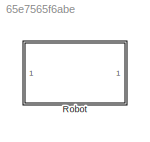
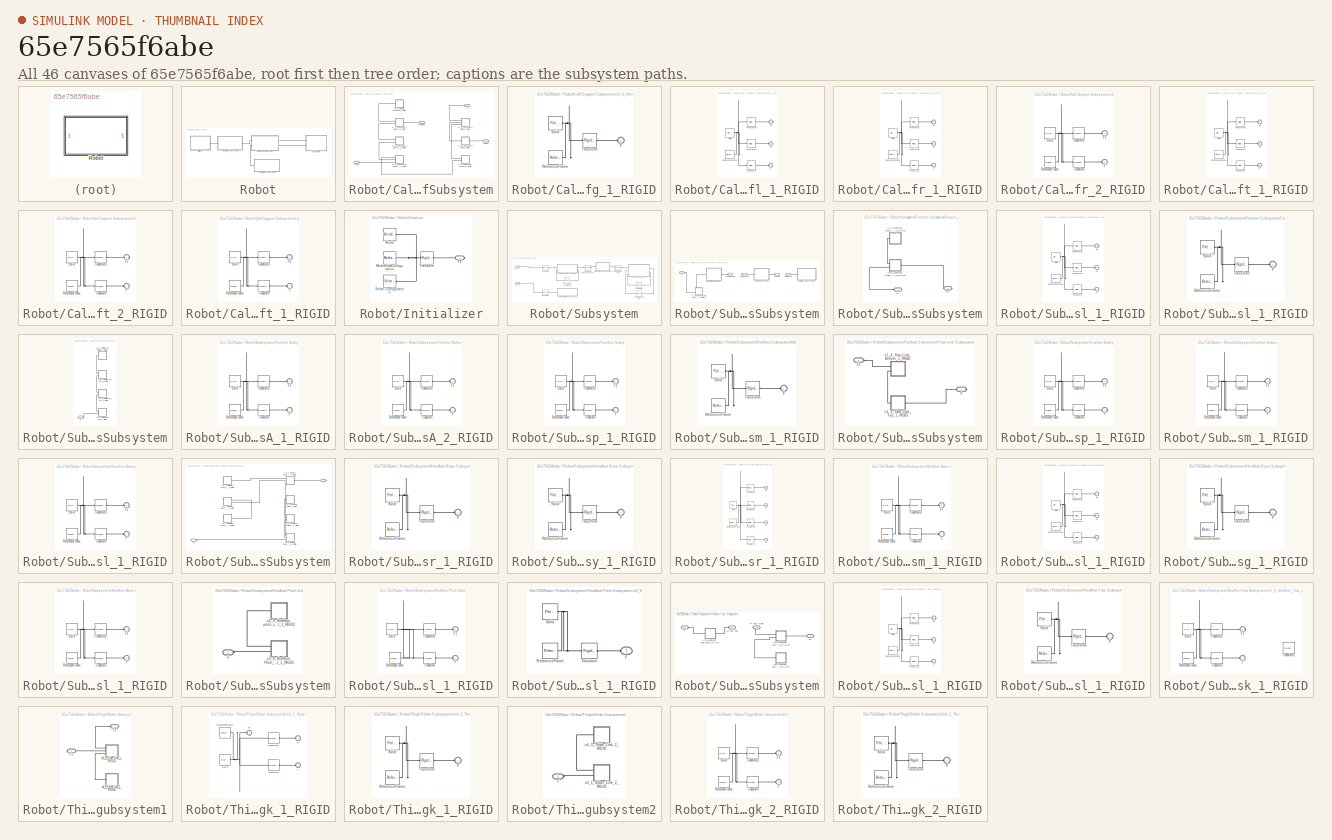
[diagram: thumbnail index - all 46 canvases of the model, root first then tree order]
MODEL slx_65e7565f6abe
KIND model
CONFIG AbsTol = auto
CONFIG EnableMultiTasking = off
CONFIG FixedStep = auto
CONFIG MaxStep = auto
CONFIG MinStep = auto
CONFIG RelTol = 1e-3
CONFIG SampleTimeConstraint = Unconstrained
CONFIG SolverName = VariableStepAuto
CONFIG StartTime = 0.0
CONFIG StopTime = 10.0
BLOCK [SubSystem] Robot
  Ports = []
  RequestExecContextInheritance = off
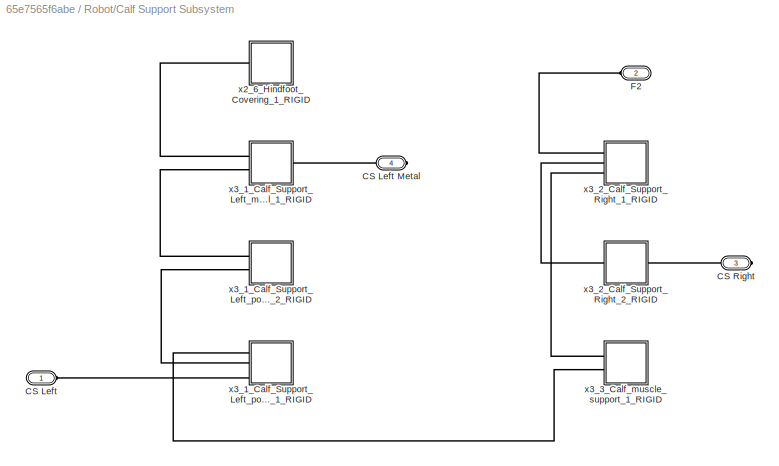
BLOCK [SubSystem] Robot/Calf Support Subsystem
  Ports = [0, 0, 0, 0, 0, 2, 2]
  RequestExecContextInheritance = off
BLOCK [PMIOPort] Robot/Calf Support Subsystem/CS Left 
  Side = Left
BLOCK [PMIOPort] Robot/Calf Support Subsystem/CS Left Metal
  Port = 4
  Side = Right
BLOCK [PMIOPort] Robot/Calf Support Subsystem/CS Right
  Port = 3
  Side = Right
BLOCK [PMIOPort] Robot/Calf Support Subsystem/F2
  Port = 2
  Side = Left
BLOCK [SubSystem] Robot/Calf Support Subsystem/x2_6_Hindfoot_Covering_1_RIGID
  Ports = [0, 0, 0, 0, 0, 1]
  RequestExecContextInheritance = off
BLOCK [PMIOPort] Robot/Calf Support Subsystem/x2_6_Hindfoot_Covering_1_RIGID/F
  Side = Left
BLOCK [Reference] Robot/Calf Support Subsystem/x2_6_Hindfoot_Covering_1_RIGID/ReferenceFrame  REF=sm_lib/Frames and
Transforms/Reference
Frame
  Ports = [0, 0, 0, 0, 0, 0, 1]
  SourceBlock = sm_lib/Frames and\nTransforms/Reference\nFrame
  SourceProductBaseCode = MS
  SourceType = Reference\nFrame
BLOCK [Reference] Robot/Calf Support Subsystem/x2_6_Hindfoot_Covering_1_RIGID/Solid  REF=sm_lib/Body Elements/File Solid
  Ports = [0, 0, 0, 0, 0, 0, 1]
  SourceBlock = sm_lib/Body Elements/File Solid
  SourceProductBaseCode = MS
  SourceType = File Solid
BLOCK [Reference] Robot/Calf Support Subsystem/x2_6_Hindfoot_Covering_1_RIGID/Transform  REF=sm_lib/Frames and
Transforms/Rigid
Transform
  Ports = [0, 0, 0, 0, 0, 1, 1]
  SourceBlock = sm_lib/Frames and\nTransforms/Rigid\nTransform
  SourceProductBaseCode = MS
  SourceType = Rigid\nTransform
BLOCK [SubSystem] Robot/Calf Support Subsystem/x3_1_Calf_Support_Left_metal_1_RIGID
  Ports = [0, 0, 0, 0, 0, 2, 1]
  RequestExecContextInheritance = off
BLOCK [PMIOPort] Robot/Calf Support Subsystem/x3_1_Calf_Support_Left_metal_1_RIGID/F
  Side = Left
BLOCK [PMIOPort] Robot/Calf Support Subsystem/x3_1_Calf_Support_Left_metal_1_RIGID/F1
  Port = 2
  Side = Left
BLOCK [PMIOPort] Robot/Calf Support Subsystem/x3_1_Calf_Support_Left_metal_1_RIGID/F2
  Port = 3
  Side = Right
BLOCK [Reference] Robot/Calf Support Subsystem/x3_1_Calf_Support_Left_metal_1_RIGID/ReferenceFrame  REF=sm_lib/Frames and
Transforms/Reference
Frame
  Ports = [0, 0, 0, 0, 0, 0, 1]
  SourceBlock = sm_lib/Frames and\nTransforms/Reference\nFrame
  SourceProductBaseCode = MS
  SourceType = Reference\nFrame
BLOCK [Reference] Robot/Calf Support Subsystem/x3_1_Calf_Support_Left_metal_1_RIGID/Solid  REF=sm_lib/Body Elements/File Solid
  Ports = [0, 0, 0, 0, 0, 0, 1]
  SourceBlock = sm_lib/Body Elements/File Solid
  SourceProductBaseCode = MS
  SourceType = File Solid
BLOCK [Reference] Robot/Calf Support Subsystem/x3_1_Calf_Support_Left_metal_1_RIGID/Transform  REF=sm_lib/Frames and
Transforms/Rigid
Transform
  Ports = [0, 0, 0, 0, 0, 1, 1]
  SourceBlock = sm_lib/Frames and\nTransforms/Rigid\nTransform
  SourceProductBaseCode = MS
  SourceType = Rigid\nTransform
BLOCK [Reference] Robot/Calf Support Subsystem/x3_1_Calf_Support_Left_metal_1_RIGID/Transform1  REF=sm_lib/Frames and
Transforms/Rigid
Transform
  Ports = [0, 0, 0, 0, 0, 1, 1]
  SourceBlock = sm_lib/Frames and\nTransforms/Rigid\nTransform
  SourceProductBaseCode = MS
  SourceType = Rigid\nTransform
BLOCK [Reference] Robot/Calf Support Subsystem/x3_1_Calf_Support_Left_metal_1_RIGID/Transform2  REF=sm_lib/Frames and
Transforms/Rigid
Transform
  Ports = [0, 0, 0, 0, 0, 1, 1]
  SourceBlock = sm_lib/Frames and\nTransforms/Rigid\nTransform
  SourceProductBaseCode = MS
  SourceType = Rigid\nTransform
BLOCK [SubSystem] Robot/Calf Support Subsystem/x3_1_Calf_Support_Left_poly_upper_1_RIGID
  Ports = [0, 0, 0, 0, 0, 3]
  RequestExecContextInheritance = off
BLOCK [PMIOPort] Robot/Calf Support Subsystem/x3_1_Calf_Support_Left_poly_upper_1_RIGID/F
  Side = Left
BLOCK [PMIOPort] Robot/Calf Support Subsystem/x3_1_Calf_Support_Left_poly_upper_1_RIGID/F1
  Port = 3
  Side = Left
BLOCK [PMIOPort] Robot/Calf Support Subsystem/x3_1_Calf_Support_Left_poly_upper_1_RIGID/F2
  Port = 2
  Side = Left
BLOCK [Reference] Robot/Calf Support Subsystem/x3_1_Calf_Support_Left_poly_upper_1_RIGID/ReferenceFrame  REF=sm_lib/Frames and
Transforms/Reference
Frame
  Ports = [0, 0, 0, 0, 0, 0, 1]
  SourceBlock = sm_lib/Frames and\nTransforms/Reference\nFrame
  SourceProductBaseCode = MS
  SourceType = Reference\nFrame
BLOCK [Reference] Robot/Calf Support Subsystem/x3_1_Calf_Support_Left_poly_upper_1_RIGID/Solid  REF=sm_lib/Body Elements/File Solid
  Ports = [0, 0, 0, 0, 0, 0, 1]
  SourceBlock = sm_lib/Body Elements/File Solid
  SourceProductBaseCode = MS
  SourceType = File Solid
BLOCK [Reference] Robot/Calf Support Subsystem/x3_1_Calf_Support_Left_poly_upper_1_RIGID/Transform  REF=sm_lib/Frames and
Transforms/Rigid
Transform
  Ports = [0, 0, 0, 0, 0, 1, 1]
  SourceBlock = sm_lib/Frames and\nTransforms/Rigid\nTransform
  SourceProductBaseCode = MS
  SourceType = Rigid\nTransform
BLOCK [Reference] Robot/Calf Support Subsystem/x3_1_Calf_Support_Left_poly_upper_1_RIGID/Transform1  REF=sm_lib/Frames and
Transforms/Rigid
Transform
  Ports = [0, 0, 0, 0, 0, 1, 1]
  SourceBlock = sm_lib/Frames and\nTransforms/Rigid\nTransform
  SourceProductBaseCode = MS
  SourceType = Rigid\nTransform
BLOCK [Reference] Robot/Calf Support Subsystem/x3_1_Calf_Support_Left_poly_upper_1_RIGID/Transform2  REF=sm_lib/Frames and
Transforms/Rigid
Transform
  Ports = [0, 0, 0, 0, 0, 1, 1]
  SourceBlock = sm_lib/Frames and\nTransforms/Rigid\nTransform
  SourceProductBaseCode = MS
  SourceType = Rigid\nTransform
BLOCK [SubSystem] Robot/Calf Support Subsystem/x3_1_Calf_Support_Left_poly_upper_2_RIGID
  Ports = [0, 0, 0, 0, 0, 2]
  RequestExecContextInheritance = off
BLOCK [PMIOPort] Robot/Calf Support Subsystem/x3_1_Calf_Support_Left_poly_upper_2_RIGID/F
  Side = Left
BLOCK [PMIOPort] Robot/Calf Support Subsystem/x3_1_Calf_Support_Left_poly_upper_2_RIGID/F1
  Port = 2
  Side = Left
BLOCK [Reference] Robot/Calf Support Subsystem/x3_1_Calf_Support_Left_poly_upper_2_RIGID/ReferenceFrame  REF=sm_lib/Frames and
Transforms/Reference
Frame
  Ports = [0, 0, 0, 0, 0, 0, 1]
  SourceBlock = sm_lib/Frames and\nTransforms/Reference\nFrame
  SourceProductBaseCode = MS
  SourceType = Reference\nFrame
BLOCK [Reference] Robot/Calf Support Subsystem/x3_1_Calf_Support_Left_poly_upper_2_RIGID/Solid  REF=sm_lib/Body Elements/File Solid
  Ports = [0, 0, 0, 0, 0, 0, 1]
  SourceBlock = sm_lib/Body Elements/File Solid
  SourceProductBaseCode = MS
  SourceType = File Solid
BLOCK [Reference] Robot/Calf Support Subsystem/x3_1_Calf_Support_Left_poly_upper_2_RIGID/Transform  REF=sm_lib/Frames and
Transforms/Rigid
Transform
  Ports = [0, 0, 0, 0, 0, 1, 1]
  SourceBlock = sm_lib/Frames and\nTransforms/Rigid\nTransform
  SourceProductBaseCode = MS
  SourceType = Rigid\nTransform
BLOCK [Reference] Robot/Calf Support Subsystem/x3_1_Calf_Support_Left_poly_upper_2_RIGID/Transform1  REF=sm_lib/Frames and
Transforms/Rigid
Transform
  Ports = [0, 0, 0, 0, 0, 1, 1]
  SourceBlock = sm_lib/Frames and\nTransforms/Rigid\nTransform
  SourceProductBaseCode = MS
  SourceType = Rigid\nTransform
BLOCK [SubSystem] Robot/Calf Support Subsystem/x3_2_Calf_Support_Right_1_RIGID
  Ports = [0, 0, 0, 0, 0, 3]
  RequestExecContextInheritance = off
BLOCK [PMIOPort] Robot/Calf Support Subsystem/x3_2_Calf_Support_Right_1_RIGID/F
  Port = 2
  Side = Left
BLOCK [PMIOPort] Robot/Calf Support Subsystem/x3_2_Calf_Support_Right_1_RIGID/F1
  Port = 3
  Side = Left
BLOCK [PMIOPort] Robot/Calf Support Subsystem/x3_2_Calf_Support_Right_1_RIGID/F2
  Side = Left
BLOCK [Reference] Robot/Calf Support Subsystem/x3_2_Calf_Support_Right_1_RIGID/ReferenceFrame  REF=sm_lib/Frames and
Transforms/Reference
Frame
  Ports = [0, 0, 0, 0, 0, 0, 1]
  SourceBlock = sm_lib/Frames and\nTransforms/Reference\nFrame
  SourceProductBaseCode = MS
  SourceType = Reference\nFrame
BLOCK [Reference] Robot/Calf Support Subsystem/x3_2_Calf_Support_Right_1_RIGID/Solid  REF=sm_lib/Body Elements/File Solid
  Ports = [0, 0, 0, 0, 0, 0, 1]
  SourceBlock = sm_lib/Body Elements/File Solid
  SourceProductBaseCode = MS
  SourceType = File Solid
BLOCK [Reference] Robot/Calf Support Subsystem/x3_2_Calf_Support_Right_1_RIGID/Transform  REF=sm_lib/Frames and
Transforms/Rigid
Transform
  Ports = [0, 0, 0, 0, 0, 1, 1]
  SourceBlock = sm_lib/Frames and\nTransforms/Rigid\nTransform
  SourceProductBaseCode = MS
  SourceType = Rigid\nTransform
BLOCK [Reference] Robot/Calf Support Subsystem/x3_2_Calf_Support_Right_1_RIGID/Transform1  REF=sm_lib/Frames and
Transforms/Rigid
Transform
  Ports = [0, 0, 0, 0, 0, 1, 1]
  SourceBlock = sm_lib/Frames and\nTransforms/Rigid\nTransform
  SourceProductBaseCode = MS
  SourceType = Rigid\nTransform
BLOCK [Reference] Robot/Calf Support Subsystem/x3_2_Calf_Support_Right_1_RIGID/Transform2  REF=sm_lib/Frames and
Transforms/Rigid
Transform
  Ports = [0, 0, 0, 0, 0, 1, 1]
  SourceBlock = sm_lib/Frames and\nTransforms/Rigid\nTransform
  SourceProductBaseCode = MS
  SourceType = Rigid\nTransform
BLOCK [SubSystem] Robot/Calf Support Subsystem/x3_2_Calf_Support_Right_2_RIGID
  Ports = [0, 0, 0, 0, 0, 1, 1]
  RequestExecContextInheritance = off
BLOCK [PMIOPort] Robot/Calf Support Subsystem/x3_2_Calf_Support_Right_2_RIGID/F
  Side = Left
BLOCK [PMIOPort] Robot/Calf Support Subsystem/x3_2_Calf_Support_Right_2_RIGID/F1
  Port = 2
  Side = Right
BLOCK [Reference] Robot/Calf Support Subsystem/x3_2_Calf_Support_Right_2_RIGID/ReferenceFrame  REF=sm_lib/Frames and
Transforms/Reference
Frame
  Ports = [0, 0, 0, 0, 0, 0, 1]
  SourceBlock = sm_lib/Frames and\nTransforms/Reference\nFrame
  SourceProductBaseCode = MS
  SourceType = Reference\nFrame
BLOCK [Reference] Robot/Calf Support Subsystem/x3_2_Calf_Support_Right_2_RIGID/Solid  REF=sm_lib/Body Elements/File Solid
  Ports = [0, 0, 0, 0, 0, 0, 1]
  SourceBlock = sm_lib/Body Elements/File Solid
  SourceProductBaseCode = MS
  SourceType = File Solid
BLOCK [Reference] Robot/Calf Support Subsystem/x3_2_Calf_Support_Right_2_RIGID/Transform  REF=sm_lib/Frames and
Transforms/Rigid
Transform
  Ports = [0, 0, 0, 0, 0, 1, 1]
  SourceBlock = sm_lib/Frames and\nTransforms/Rigid\nTransform
  SourceProductBaseCode = MS
  SourceType = Rigid\nTransform
BLOCK [Reference] Robot/Calf Support Subsystem/x3_2_Calf_Support_Right_2_RIGID/Transform1  REF=sm_lib/Frames and
Transforms/Rigid
Transform
  Ports = [0, 0, 0, 0, 0, 1, 1]
  SourceBlock = sm_lib/Frames and\nTransforms/Rigid\nTransform
  SourceProductBaseCode = MS
  SourceType = Rigid\nTransform
BLOCK [SubSystem] Robot/Calf Support Subsystem/x3_3_Calf_muscle_support_1_RIGID
  Ports = [0, 0, 0, 0, 0, 2]
  RequestExecContextInheritance = off
BLOCK [PMIOPort] Robot/Calf Support Subsystem/x3_3_Calf_muscle_support_1_RIGID/F
  Side = Left
BLOCK [PMIOPort] Robot/Calf Support Subsystem/x3_3_Calf_muscle_support_1_RIGID/F1
  Port = 2
  Side = Left
BLOCK [Reference] Robot/Calf Support Subsystem/x3_3_Calf_muscle_support_1_RIGID/ReferenceFrame  REF=sm_lib/Frames and
Transforms/Reference
Frame
  Ports = [0, 0, 0, 0, 0, 0, 1]
  SourceBlock = sm_lib/Frames and\nTransforms/Reference\nFrame
  SourceProductBaseCode = MS
  SourceType = Reference\nFrame
BLOCK [Reference] Robot/Calf Support Subsystem/x3_3_Calf_muscle_support_1_RIGID/Solid  REF=sm_lib/Body Elements/File Solid
  Ports = [0, 0, 0, 0, 0, 0, 1]
  SourceBlock = sm_lib/Body Elements/File Solid
  SourceProductBaseCode = MS
  SourceType = File Solid
BLOCK [Reference] Robot/Calf Support Subsystem/x3_3_Calf_muscle_support_1_RIGID/Transform  REF=sm_lib/Frames and
Transforms/Rigid
Transform
  Ports = [0, 0, 0, 0, 0, 1, 1]
  SourceBlock = sm_lib/Frames and\nTransforms/Rigid\nTransform
  SourceProductBaseCode = MS
  SourceType = Rigid\nTransform
BLOCK [Reference] Robot/Calf Support Subsystem/x3_3_Calf_muscle_support_1_RIGID/Transform1  REF=sm_lib/Frames and
Transforms/Rigid
Transform
  Ports = [0, 0, 0, 0, 0, 1, 1]
  SourceBlock = sm_lib/Frames and\nTransforms/Rigid\nTransform
  SourceProductBaseCode = MS
  SourceType = Rigid\nTransform
BLOCK [SubSystem] Robot/Initializer
  Ports = [0, 0, 0, 0, 0, 0, 1]
  RequestExecContextInheritance = off
BLOCK [PMIOPort] Robot/Initializer/F2
  Side = Right
BLOCK [Reference] Robot/Initializer/MechanismConfiguration  REF=sm_lib/Utilities/Mechanism
Configuration
  Ports = [0, 0, 0, 0, 0, 0, 1]
  SourceBlock = sm_lib/Utilities/Mechanism\nConfiguration
  SourceProductBaseCode = MS
  SourceType = Mechanism\nConfiguration
BLOCK [Reference] Robot/Initializer/Solver Configuration  REF=nesl_utility/Solver
Configuration
  Ports = [0, 0, 0, 0, 0, 0, 1]
  SourceBlock = nesl_utility/Solver\nConfiguration
  SourceProductBaseCode = PW,SS
  SourceType = Solver\nConfiguration
BLOCK [Reference] Robot/Initializer/Transform  REF=sm_lib/Frames and
Transforms/Rigid
Transform
  Ports = [0, 0, 0, 0, 0, 1, 1]
  SourceBlock = sm_lib/Frames and\nTransforms/Rigid\nTransform
  SourceProductBaseCode = MS
  SourceType = Rigid\nTransform
BLOCK [Reference] Robot/Initializer/World  REF=sm_lib/Frames and
Transforms/World Frame
  Ports = [0, 0, 0, 0, 0, 0, 1]
  SourceBlock = sm_lib/Frames and\nTransforms/World Frame
  SourceProductBaseCode = MS
  SourceType = World Frame
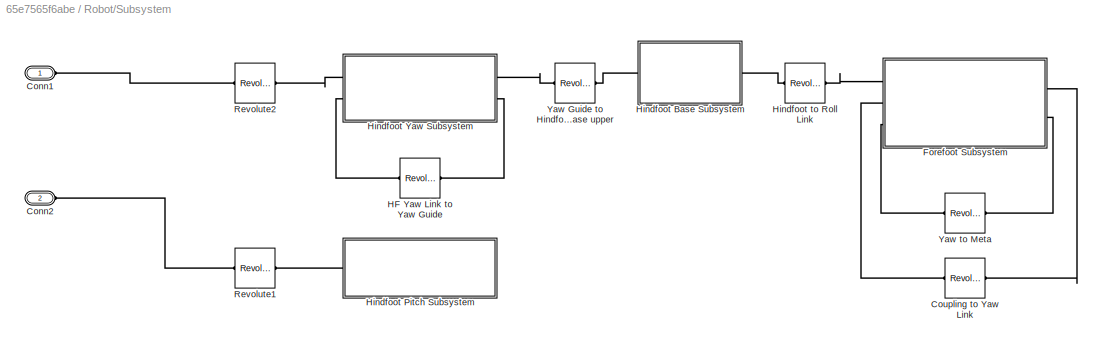
BLOCK [SubSystem] Robot/Subsystem
  Ports = [0, 0, 0, 0, 0, 2]
  RequestExecContextInheritance = off
BLOCK [PMIOPort] Robot/Subsystem/Conn1
  Side = Left
BLOCK [PMIOPort] Robot/Subsystem/Conn2
  Port = 2
  Side = Left
BLOCK [Reference] Robot/Subsystem/Coupling to Yaw Link  REF=sm_lib/Joints/Revolute Joint
  Ports = [0, 0, 0, 0, 0, 1, 1]
  SourceBlock = sm_lib/Joints/Revolute Joint
  SourceProductBaseCode = MS
  SourceType = Revolute Joint
BLOCK [SubSystem] Robot/Subsystem/Forefoot Subsystem
  Ports = [0, 0, 0, 0, 0, 3, 2]
  RequestExecContextInheritance = off
BLOCK [PMIOPort] Robot/Subsystem/Forefoot Subsystem/Coupling Shaft
  Port = 2
  Side = Left
BLOCK [SubSystem] Robot/Subsystem/Forefoot Subsystem/Coupling Subsystem
  Ports = [0, 0, 0, 0, 0, 1, 1]
  RequestExecContextInheritance = off
BLOCK [PMIOPort] Robot/Subsystem/Forefoot Subsystem/Coupling Subsystem/F1
  Port = 2
  Side = Left
BLOCK [PMIOPort] Robot/Subsystem/Forefoot Subsystem/Coupling Subsystem/F2
  Side = Right
BLOCK [SubSystem] Robot/Subsystem/Forefoot Subsystem/Coupling Subsystem/x1_6_Coupling_Shaft_Metal_1_RIGID
  Ports = [0, 0, 0, 0, 0, 2, 1]
  RequestExecContextInheritance = off
BLOCK [PMIOPort] Robot/Subsystem/Forefoot Subsystem/Coupling Subsystem/x1_6_Coupling_Shaft_Metal_1_RIGID/F
  Side = Left
BLOCK [PMIOPort] Robot/Subsystem/Forefoot Subsystem/Coupling Subsystem/x1_6_Coupling_Shaft_Metal_1_RIGID/F1
  Port = 2
  Side = Left
BLOCK [PMIOPort] Robot/Subsystem/Forefoot Subsystem/Coupling Subsystem/x1_6_Coupling_Shaft_Metal_1_RIGID/F2
  Port = 3
  Side = Right
BLOCK [Reference] Robot/Subsystem/Forefoot Subsystem/Coupling Subsystem/x1_6_Coupling_Shaft_Metal_1_RIGID/ReferenceFrame  REF=sm_lib/Frames and
Transforms/Reference
Frame
  Ports = [0, 0, 0, 0, 0, 0, 1]
  SourceBlock = sm_lib/Frames and\nTransforms/Reference\nFrame
  SourceProductBaseCode = MS
  SourceType = Reference\nFrame
BLOCK [Reference] Robot/Subsystem/Forefoot Subsystem/Coupling Subsystem/x1_6_Coupling_Shaft_Metal_1_RIGID/Solid  REF=sm_lib/Body Elements/File Solid
  Ports = [0, 0, 0, 0, 0, 0, 1]
  SourceBlock = sm_lib/Body Elements/File Solid
  SourceProductBaseCode = MS
  SourceType = File Solid
BLOCK [Reference] Robot/Subsystem/Forefoot Subsystem/Coupling Subsystem/x1_6_Coupling_Shaft_Metal_1_RIGID/Transform  REF=sm_lib/Frames and
Transforms/Rigid
Transform
  Ports = [0, 0, 0, 0, 0, 1, 1]
  SourceBlock = sm_lib/Frames and\nTransforms/Rigid\nTransform
  SourceProductBaseCode = MS
  SourceType = Rigid\nTransform
BLOCK [Reference] Robot/Subsystem/Forefoot Subsystem/Coupling Subsystem/x1_6_Coupling_Shaft_Metal_1_RIGID/Transform1  REF=sm_lib/Frames and
Transforms/Rigid
Transform
  Ports = [0, 0, 0, 0, 0, 1, 1]
  SourceBlock = sm_lib/Frames and\nTransforms/Rigid\nTransform
  SourceProductBaseCode = MS
  SourceType = Rigid\nTransform
BLOCK [Reference] Robot/Subsystem/Forefoot Subsystem/Coupling Subsystem/x1_6_Coupling_Shaft_Metal_1_RIGID/Transform2  REF=sm_lib/Frames and
Transforms/Rigid
Transform
  Ports = [0, 0, 0, 0, 0, 1, 1]
  SourceBlock = sm_lib/Frames and\nTransforms/Rigid\nTransform
  SourceProductBaseCode = MS
  SourceType = Rigid\nTransform
BLOCK [SubSystem] Robot/Subsystem/Forefoot Subsystem/Coupling Subsystem/x1_7_Coupling_Shaft_Cap_Metal_1_RIGID
  Ports = [0, 0, 0, 0, 0, 1]
  RequestExecContextInheritance = off
BLOCK [PMIOPort] Robot/Subsystem/Forefoot Subsystem/Coupling Subsystem/x1_7_Coupling_Shaft_Cap_Metal_1_RIGID/F
  Side = Left
BLOCK [Reference] Robot/Subsystem/Forefoot Subsystem/Coupling Subsystem/x1_7_Coupling_Shaft_Cap_Metal_1_RIGID/ReferenceFrame  REF=sm_lib/Frames and
Transforms/Reference
Frame
  Ports = [0, 0, 0, 0, 0, 0, 1]
  SourceBlock = sm_lib/Frames and\nTransforms/Reference\nFrame
  SourceProductBaseCode = MS
  SourceType = Reference\nFrame
BLOCK [Reference] Robot/Subsystem/Forefoot Subsystem/Coupling Subsystem/x1_7_Coupling_Shaft_Cap_Metal_1_RIGID/Solid  REF=sm_lib/Body Elements/File Solid
  Ports = [0, 0, 0, 0, 0, 0, 1]
  SourceBlock = sm_lib/Body Elements/File Solid
  SourceProductBaseCode = MS
  SourceType = File Solid
BLOCK [Reference] Robot/Subsystem/Forefoot Subsystem/Coupling Subsystem/x1_7_Coupling_Shaft_Cap_Metal_1_RIGID/Transform  REF=sm_lib/Frames and
Transforms/Rigid
Transform
  Ports = [0, 0, 0, 0, 0, 1, 1]
  SourceBlock = sm_lib/Frames and\nTransforms/Rigid\nTransform
  SourceProductBaseCode = MS
  SourceType = Rigid\nTransform
BLOCK [PMIOPort] Robot/Subsystem/Forefoot Subsystem/F1
  Side = Left
BLOCK [PMIOPort] Robot/Subsystem/Forefoot Subsystem/Metatarsal
  Port = 5
  Side = Right
BLOCK [SubSystem] Robot/Subsystem/Forefoot Subsystem/Metatarsal Subsystem
  Ports = [0, 0, 0, 0, 0, 1]
  RequestExecContextInheritance = off
BLOCK [PMIOPort] Robot/Subsystem/Forefoot Subsystem/Metatarsal Subsystem/F
  Side = Left
BLOCK [SubSystem] Robot/Subsystem/Forefoot Subsystem/Metatarsal Subsystem/x1_0_Metatarsal_SLA_1_RIGID
  Ports = [0, 0, 0, 0, 0, 2]
  RequestExecContextInheritance = off
BLOCK [PMIOPort] Robot/Subsystem/Forefoot Subsystem/Metatarsal Subsystem/x1_0_Metatarsal_SLA_1_RIGID/F
  Side = Left
BLOCK [PMIOPort] Robot/Subsystem/Forefoot Subsystem/Metatarsal Subsystem/x1_0_Metatarsal_SLA_1_RIGID/F1
  Port = 2
  Side = Left
BLOCK [Reference] Robot/Subsystem/Forefoot Subsystem/Metatarsal Subsystem/x1_0_Metatarsal_SLA_1_RIGID/ReferenceFrame  REF=sm_lib/Frames and
Transforms/Reference
Frame
  Ports = [0, 0, 0, 0, 0, 0, 1]
  SourceBlock = sm_lib/Frames and\nTransforms/Reference\nFrame
  SourceProductBaseCode = MS
  SourceType = Reference\nFrame
BLOCK [Reference] Robot/Subsystem/Forefoot Subsystem/Metatarsal Subsystem/x1_0_Metatarsal_SLA_1_RIGID/Solid  REF=sm_lib/Body Elements/File Solid
  Ports = [0, 0, 0, 0, 0, 0, 1]
  SourceBlock = sm_lib/Body Elements/File Solid
  SourceProductBaseCode = MS
  SourceType = File Solid
BLOCK [Reference] Robot/Subsystem/Forefoot Subsystem/Metatarsal Subsystem/x1_0_Metatarsal_SLA_1_RIGID/Transform  REF=sm_lib/Frames and
Transforms/Rigid
Transform
  Ports = [0, 0, 0, 0, 0, 1, 1]
  SourceBlock = sm_lib/Frames and\nTransforms/Rigid\nTransform
  SourceProductBaseCode = MS
  SourceType = Rigid\nTransform
BLOCK [Reference] Robot/Subsystem/Forefoot Subsystem/Metatarsal Subsystem/x1_0_Metatarsal_SLA_1_RIGID/Transform1  REF=sm_lib/Frames and
Transforms/Rigid
Transform
  Ports = [0, 0, 0, 0, 0, 1, 1]
  SourceBlock = sm_lib/Frames and\nTransforms/Rigid\nTransform
  SourceProductBaseCode = MS
  SourceType = Rigid\nTransform
BLOCK [SubSystem] Robot/Subsystem/Forefoot Subsystem/Metatarsal Subsystem/x1_0_Metatarsal_SLA_2_RIGID
  Ports = [0, 0, 0, 0, 0, 2]
  RequestExecContextInheritance = off
BLOCK [PMIOPort] Robot/Subsystem/Forefoot Subsystem/Metatarsal Subsystem/x1_0_Metatarsal_SLA_2_RIGID/F
  Port = 2
  Side = Left
BLOCK [PMIOPort] Robot/Subsystem/Forefoot Subsystem/Metatarsal Subsystem/x1_0_Metatarsal_SLA_2_RIGID/F1
  Side = Left
BLOCK [Reference] Robot/Subsystem/Forefoot Subsystem/Metatarsal Subsystem/x1_0_Metatarsal_SLA_2_RIGID/ReferenceFrame  REF=sm_lib/Frames and
Transforms/Reference
Frame
  Ports = [0, 0, 0, 0, 0, 0, 1]
  SourceBlock = sm_lib/Frames and\nTransforms/Reference\nFrame
  SourceProductBaseCode = MS
  SourceType = Reference\nFrame
BLOCK [Reference] Robot/Subsystem/Forefoot Subsystem/Metatarsal Subsystem/x1_0_Metatarsal_SLA_2_RIGID/Solid  REF=sm_lib/Body Elements/File Solid
  Ports = [0, 0, 0, 0, 0, 0, 1]
  SourceBlock = sm_lib/Body Elements/File Solid
  SourceProductBaseCode = MS
  SourceType = File Solid
BLOCK [Reference] Robot/Subsystem/Forefoot Subsystem/Metatarsal Subsystem/x1_0_Metatarsal_SLA_2_RIGID/Transform  REF=sm_lib/Frames and
Transforms/Rigid
Transform
  Ports = [0, 0, 0, 0, 0, 1, 1]
  SourceBlock = sm_lib/Frames and\nTransforms/Rigid\nTransform
  SourceProductBaseCode = MS
  SourceType = Rigid\nTransform
BLOCK [Reference] Robot/Subsystem/Forefoot Subsystem/Metatarsal Subsystem/x1_0_Metatarsal_SLA_2_RIGID/Transform1  REF=sm_lib/Frames and
Transforms/Rigid
Transform
  Ports = [0, 0, 0, 0, 0, 1, 1]
  SourceBlock = sm_lib/Frames and\nTransforms/Rigid\nTransform
  SourceProductBaseCode = MS
  SourceType = Rigid\nTransform
BLOCK [SubSystem] Robot/Subsystem/Forefoot Subsystem/Metatarsal Subsystem/x1_1_Metatarsal_Top_1_RIGID
  Ports = [0, 0, 0, 0, 0, 2]
  RequestExecContextInheritance = off
BLOCK [PMIOPort] Robot/Subsystem/Forefoot Subsystem/Metatarsal Subsystem/x1_1_Metatarsal_Top_1_RIGID/F
  Port = 2
  Side = Left
BLOCK [PMIOPort] Robot/Subsystem/Forefoot Subsystem/Metatarsal Subsystem/x1_1_Metatarsal_Top_1_RIGID/F1
  Side = Left
BLOCK [Reference] Robot/Subsystem/Forefoot Subsystem/Metatarsal Subsystem/x1_1_Metatarsal_Top_1_RIGID/ReferenceFrame  REF=sm_lib/Frames and
Transforms/Reference
Frame
  Ports = [0, 0, 0, 0, 0, 0, 1]
  SourceBlock = sm_lib/Frames and\nTransforms/Reference\nFrame
  SourceProductBaseCode = MS
  SourceType = Reference\nFrame
BLOCK [Reference] Robot/Subsystem/Forefoot Subsystem/Metatarsal Subsystem/x1_1_Metatarsal_Top_1_RIGID/Solid  REF=sm_lib/Body Elements/File Solid
  Ports = [0, 0, 0, 0, 0, 0, 1]
  SourceBlock = sm_lib/Body Elements/File Solid
  SourceProductBaseCode = MS
  SourceType = File Solid
BLOCK [Reference] Robot/Subsystem/Forefoot Subsystem/Metatarsal Subsystem/x1_1_Metatarsal_Top_1_RIGID/Transform  REF=sm_lib/Frames and
Transforms/Rigid
Transform
  Ports = [0, 0, 0, 0, 0, 1, 1]
  SourceBlock = sm_lib/Frames and\nTransforms/Rigid\nTransform
  SourceProductBaseCode = MS
  SourceType = Rigid\nTransform
BLOCK [Reference] Robot/Subsystem/Forefoot Subsystem/Metatarsal Subsystem/x1_1_Metatarsal_Top_1_RIGID/Transform1  REF=sm_lib/Frames and
Transforms/Rigid
Transform
  Ports = [0, 0, 0, 0, 0, 1, 1]
  SourceBlock = sm_lib/Frames and\nTransforms/Rigid\nTransform
  SourceProductBaseCode = MS
  SourceType = Rigid\nTransform
BLOCK [SubSystem] Robot/Subsystem/Forefoot Subsystem/Metatarsal Subsystem/x1_2_Metatarsal_Bottom_1_RIGID
  Ports = [0, 0, 0, 0, 0, 1]
  RequestExecContextInheritance = off
BLOCK [PMIOPort] Robot/Subsystem/Forefoot Subsystem/Metatarsal Subsystem/x1_2_Metatarsal_Bottom_1_RIGID/F
  Side = Left
BLOCK [Reference] Robot/Subsystem/Forefoot Subsystem/Metatarsal Subsystem/x1_2_Metatarsal_Bottom_1_RIGID/ReferenceFrame  REF=sm_lib/Frames and
Transforms/Reference
Frame
  Ports = [0, 0, 0, 0, 0, 0, 1]
  SourceBlock = sm_lib/Frames and\nTransforms/Reference\nFrame
  SourceProductBaseCode = MS
  SourceType = Reference\nFrame
BLOCK [Reference] Robot/Subsystem/Forefoot Subsystem/Metatarsal Subsystem/x1_2_Metatarsal_Bottom_1_RIGID/Solid  REF=sm_lib/Body Elements/File Solid
  Ports = [0, 0, 0, 0, 0, 0, 1]
  SourceBlock = sm_lib/Body Elements/File Solid
  SourceProductBaseCode = MS
  SourceType = File Solid
BLOCK [Reference] Robot/Subsystem/Forefoot Subsystem/Metatarsal Subsystem/x1_2_Metatarsal_Bottom_1_RIGID/Transform  REF=sm_lib/Frames and
Transforms/Rigid
Transform
  Ports = [0, 0, 0, 0, 0, 1, 1]
  SourceBlock = sm_lib/Frames and\nTransforms/Rigid\nTransform
  SourceProductBaseCode = MS
  SourceType = Rigid\nTransform
BLOCK [PMIOPort] Robot/Subsystem/Forefoot Subsystem/Yaw Link
  Port = 3
  Side = Left
BLOCK [SubSystem] Robot/Subsystem/Forefoot Subsystem/Yaw Link Subsystem
  Ports = [0, 0, 0, 0, 0, 1, 1]
  RequestExecContextInheritance = off
BLOCK [PMIOPort] Robot/Subsystem/Forefoot Subsystem/Yaw Link Subsystem/F
  Port = 2
  Side = Right
BLOCK [PMIOPort] Robot/Subsystem/Forefoot Subsystem/Yaw Link Subsystem/F1
  Side = Left
BLOCK [SubSystem] Robot/Subsystem/Forefoot Subsystem/Yaw Link Subsystem/x1_3_Yaw_Link_Top_1_RIGID
  Ports = [0, 0, 0, 0, 0, 1, 1]
  RequestExecContextInheritance = off
BLOCK [PMIOPort] Robot/Subsystem/Forefoot Subsystem/Yaw Link Subsystem/x1_3_Yaw_Link_Top_1_RIGID/F
  Port = 2
  Side = Right
BLOCK [PMIOPort] Robot/Subsystem/Forefoot Subsystem/Yaw Link Subsystem/x1_3_Yaw_Link_Top_1_RIGID/F1
  Side = Left
BLOCK [Reference] Robot/Subsystem/Forefoot Subsystem/Yaw Link Subsystem/x1_3_Yaw_Link_Top_1_RIGID/ReferenceFrame  REF=sm_lib/Frames and
Transforms/Reference
Frame
  Ports = [0, 0, 0, 0, 0, 0, 1]
  SourceBlock = sm_lib/Frames and\nTransforms/Reference\nFrame
  SourceProductBaseCode = MS
  SourceType = Reference\nFrame
BLOCK [Reference] Robot/Subsystem/Forefoot Subsystem/Yaw Link Subsystem/x1_3_Yaw_Link_Top_1_RIGID/Solid  REF=sm_lib/Body Elements/File Solid
  Ports = [0, 0, 0, 0, 0, 0, 1]
  SourceBlock = sm_lib/Body Elements/File Solid
  SourceProductBaseCode = MS
  SourceType = File Solid
BLOCK [Reference] Robot/Subsystem/Forefoot Subsystem/Yaw Link Subsystem/x1_3_Yaw_Link_Top_1_RIGID/Transform  REF=sm_lib/Frames and
Transforms/Rigid
Transform
  Ports = [0, 0, 0, 0, 0, 1, 1]
  SourceBlock = sm_lib/Frames and\nTransforms/Rigid\nTransform
  SourceProductBaseCode = MS
  SourceType = Rigid\nTransform
BLOCK [Reference] Robot/Subsystem/Forefoot Subsystem/Yaw Link Subsystem/x1_3_Yaw_Link_Top_1_RIGID/Transform1  REF=sm_lib/Frames and
Transforms/Rigid
Transform
  Ports = [0, 0, 0, 0, 0, 1, 1]
  SourceBlock = sm_lib/Frames and\nTransforms/Rigid\nTransform
  SourceProductBaseCode = MS
  SourceType = Rigid\nTransform
BLOCK [SubSystem] Robot/Subsystem/Forefoot Subsystem/Yaw Link Subsystem/x1_4_Yaw_Link_Bottom_1_RIGID
  Ports = [0, 0, 0, 0, 0, 2]
  RequestExecContextInheritance = off
BLOCK [PMIOPort] Robot/Subsystem/Forefoot Subsystem/Yaw Link Subsystem/x1_4_Yaw_Link_Bottom_1_RIGID/F
  Port = 2
  Side = Left
BLOCK [PMIOPort] Robot/Subsystem/Forefoot Subsystem/Yaw Link Subsystem/x1_4_Yaw_Link_Bottom_1_RIGID/F1
  Side = Left
BLOCK [Reference] Robot/Subsystem/Forefoot Subsystem/Yaw Link Subsystem/x1_4_Yaw_Link_Bottom_1_RIGID/ReferenceFrame  REF=sm_lib/Frames and
Transforms/Reference
Frame
  Ports = [0, 0, 0, 0, 0, 0, 1]
  SourceBlock = sm_lib/Frames and\nTransforms/Reference\nFrame
  SourceProductBaseCode = MS
  SourceType = Reference\nFrame
BLOCK [Reference] Robot/Subsystem/Forefoot Subsystem/Yaw Link Subsystem/x1_4_Yaw_Link_Bottom_1_RIGID/Solid  REF=sm_lib/Body Elements/File Solid
  Ports = [0, 0, 0, 0, 0, 0, 1]
  SourceBlock = sm_lib/Body Elements/File Solid
  SourceProductBaseCode = MS
  SourceType = File Solid
BLOCK [Reference] Robot/Subsystem/Forefoot Subsystem/Yaw Link Subsystem/x1_4_Yaw_Link_Bottom_1_RIGID/Transform  REF=sm_lib/Frames and
Transforms/Rigid
Transform
  Ports = [0, 0, 0, 0, 0, 1, 1]
  SourceBlock = sm_lib/Frames and\nTransforms/Rigid\nTransform
  SourceProductBaseCode = MS
  SourceType = Rigid\nTransform
BLOCK [Reference] Robot/Subsystem/Forefoot Subsystem/Yaw Link Subsystem/x1_4_Yaw_Link_Bottom_1_RIGID/Transform1  REF=sm_lib/Frames and
Transforms/Rigid
Transform
  Ports = [0, 0, 0, 0, 0, 1, 1]
  SourceBlock = sm_lib/Frames and\nTransforms/Rigid\nTransform
  SourceProductBaseCode = MS
  SourceType = Rigid\nTransform
BLOCK [PMIOPort] Robot/Subsystem/Forefoot Subsystem/Yaw Link Top
  Port = 4
  Side = Right
BLOCK [SubSystem] Robot/Subsystem/Forefoot Subsystem/x1_5_Forefoot_Roll_Link_metal_1_RIGID
  Ports = [0, 0, 0, 0, 0, 2]
  RequestExecContextInheritance = off
BLOCK [PMIOPort] Robot/Subsystem/Forefoot Subsystem/x1_5_Forefoot_Roll_Link_metal_1_RIGID/F
  Side = Left
BLOCK [PMIOPort] Robot/Subsystem/Forefoot Subsystem/x1_5_Forefoot_Roll_Link_metal_1_RIGID/F1
  Port = 2
  Side = Left
BLOCK [Reference] Robot/Subsystem/Forefoot Subsystem/x1_5_Forefoot_Roll_Link_metal_1_RIGID/ReferenceFrame  REF=sm_lib/Frames and
Transforms/Reference
Frame
  Ports = [0, 0, 0, 0, 0, 0, 1]
  SourceBlock = sm_lib/Frames and\nTransforms/Reference\nFrame
  SourceProductBaseCode = MS
  SourceType = Reference\nFrame
BLOCK [Reference] Robot/Subsystem/Forefoot Subsystem/x1_5_Forefoot_Roll_Link_metal_1_RIGID/Solid  REF=sm_lib/Body Elements/File Solid
  Ports = [0, 0, 0, 0, 0, 0, 1]
  SourceBlock = sm_lib/Body Elements/File Solid
  SourceProductBaseCode = MS
  SourceType = File Solid
BLOCK [Reference] Robot/Subsystem/Forefoot Subsystem/x1_5_Forefoot_Roll_Link_metal_1_RIGID/Transform  REF=sm_lib/Frames and
Transforms/Rigid
Transform
  Ports = [0, 0, 0, 0, 0, 1, 1]
  SourceBlock = sm_lib/Frames and\nTransforms/Rigid\nTransform
  SourceProductBaseCode = MS
  SourceType = Rigid\nTransform
BLOCK [Reference] Robot/Subsystem/Forefoot Subsystem/x1_5_Forefoot_Roll_Link_metal_1_RIGID/Transform1  REF=sm_lib/Frames and
Transforms/Rigid
Transform
  Ports = [0, 0, 0, 0, 0, 1, 1]
  SourceBlock = sm_lib/Frames and\nTransforms/Rigid\nTransform
  SourceProductBaseCode = MS
  SourceType = Rigid\nTransform
BLOCK [Reference] Robot/Subsystem/HF Yaw Link to Yaw Guide  REF=sm_lib/Joints/Revolute Joint
  Ports = [0, 0, 0, 0, 0, 1, 1]
  SourceBlock = sm_lib/Joints/Revolute Joint
  SourceProductBaseCode = MS
  SourceType = Revolute Joint
BLOCK [SubSystem] Robot/Subsystem/Hindfoot Base Subsystem
  Ports = [0, 0, 0, 0, 0, 1, 1]
  RequestExecContextInheritance = off
BLOCK [PMIOPort] Robot/Subsystem/Hindfoot Base Subsystem/F
  Side = Right
BLOCK [PMIOPort] Robot/Subsystem/Hindfoot Base Subsystem/F1
  Port = 2
  Side = Left
BLOCK [SubSystem] Robot/Subsystem/Hindfoot Base Subsystem/x2_1_Hindfoot_base_lower_1_RIGID
  Ports = [0, 0, 0, 0, 0, 1]
  RequestExecContextInheritance = off
BLOCK [PMIOPort] Robot/Subsystem/Hindfoot Base Subsystem/x2_1_Hindfoot_base_lower_1_RIGID/F
  Side = Left
BLOCK [Reference] Robot/Subsystem/Hindfoot Base Subsystem/x2_1_Hindfoot_base_lower_1_RIGID/ReferenceFrame  REF=sm_lib/Frames and
Transforms/Reference
Frame
  Ports = [0, 0, 0, 0, 0, 0, 1]
  SourceBlock = sm_lib/Frames and\nTransforms/Reference\nFrame
  SourceProductBaseCode = MS
  SourceType = Reference\nFrame
BLOCK [Reference] Robot/Subsystem/Hindfoot Base Subsystem/x2_1_Hindfoot_base_lower_1_RIGID/Solid  REF=sm_lib/Body Elements/File Solid
  Ports = [0, 0, 0, 0, 0, 0, 1]
  SourceBlock = sm_lib/Body Elements/File Solid
  SourceProductBaseCode = MS
  SourceType = File Solid
BLOCK [Reference] Robot/Subsystem/Hindfoot Base Subsystem/x2_1_Hindfoot_base_lower_1_RIGID/Transform  REF=sm_lib/Frames and
Transforms/Rigid
Transform
  Ports = [0, 0, 0, 0, 0, 1, 1]
  SourceBlock = sm_lib/Frames and\nTransforms/Rigid\nTransform
  SourceProductBaseCode = MS
  SourceType = Rigid\nTransform
BLOCK [SubSystem] Robot/Subsystem/Hindfoot Base Subsystem/x2_1_Hindfoot_base_lower_Metal_Copy_1_RIGID
  Ports = [0, 0, 0, 0, 0, 1]
  RequestExecContextInheritance = off
BLOCK [PMIOPort] Robot/Subsystem/Hindfoot Base Subsystem/x2_1_Hindfoot_base_lower_Metal_Copy_1_RIGID/F
  Side = Left
BLOCK [Reference] Robot/Subsystem/Hindfoot Base Subsystem/x2_1_Hindfoot_base_lower_Metal_Copy_1_RIGID/ReferenceFrame  REF=sm_lib/Frames and
Transforms/Reference
Frame
  Ports = [0, 0, 0, 0, 0, 0, 1]
  SourceBlock = sm_lib/Frames and\nTransforms/Reference\nFrame
  SourceProductBaseCode = MS
  SourceType = Reference\nFrame
BLOCK [Reference] Robot/Subsystem/Hindfoot Base Subsystem/x2_1_Hindfoot_base_lower_Metal_Copy_1_RIGID/Solid  REF=sm_lib/Body Elements/File Solid
  Ports = [0, 0, 0, 0, 0, 0, 1]
  SourceBlock = sm_lib/Body Elements/File Solid
  SourceProductBaseCode = MS
  SourceType = File Solid
BLOCK [Reference] Robot/Subsystem/Hindfoot Base Subsystem/x2_1_Hindfoot_base_lower_Metal_Copy_1_RIGID/Transform  REF=sm_lib/Frames and
Transforms/Rigid
Transform
  Ports = [0, 0, 0, 0, 0, 1, 1]
  SourceBlock = sm_lib/Frames and\nTransforms/Rigid\nTransform
  SourceProductBaseCode = MS
  SourceType = Rigid\nTransform
BLOCK [SubSystem] Robot/Subsystem/Hindfoot Base Subsystem/x2_2_Hindfoot_Base_Upper_1_RIGID
  Ports = [0, 0, 0, 0, 0, 3, 1]
  RequestExecContextInheritance = off
BLOCK [PMIOPort] Robot/Subsystem/Hindfoot Base Subsystem/x2_2_Hindfoot_Base_Upper_1_RIGID/F
  Port = 4
  Side = Right
BLOCK [PMIOPort] Robot/Subsystem/Hindfoot Base Subsystem/x2_2_Hindfoot_Base_Upper_1_RIGID/F1
  Port = 3
  Side = Left
BLOCK [PMIOPort] Robot/Subsystem/Hindfoot Base Subsystem/x2_2_Hindfoot_Base_Upper_1_RIGID/F2
  Port = 2
  Side = Left
BLOCK [PMIOPort] Robot/Subsystem/Hindfoot Base Subsystem/x2_2_Hindfoot_Base_Upper_1_RIGID/F3
  Side = Left
BLOCK [Reference] Robot/Subsystem/Hindfoot Base Subsystem/x2_2_Hindfoot_Base_Upper_1_RIGID/ReferenceFrame  REF=sm_lib/Frames and
Transforms/Reference
Frame
  Ports = [0, 0, 0, 0, 0, 0, 1]
  SourceBlock = sm_lib/Frames and\nTransforms/Reference\nFrame
  SourceProductBaseCode = MS
  SourceType = Reference\nFrame
BLOCK [Reference] Robot/Subsystem/Hindfoot Base Subsystem/x2_2_Hindfoot_Base_Upper_1_RIGID/Solid  REF=sm_lib/Body Elements/File Solid
  Ports = [0, 0, 0, 0, 0, 0, 1]
  SourceBlock = sm_lib/Body Elements/File Solid
  SourceProductBaseCode = MS
  SourceType = File Solid
BLOCK [Reference] Robot/Subsystem/Hindfoot Base Subsystem/x2_2_Hindfoot_Base_Upper_1_RIGID/Transform  REF=sm_lib/Frames and
Transforms/Rigid
Transform
  Ports = [0, 0, 0, 0, 0, 1, 1]
  SourceBlock = sm_lib/Frames and\nTransforms/Rigid\nTransform
  SourceProductBaseCode = MS
  SourceType = Rigid\nTransform
BLOCK [Reference] Robot/Subsystem/Hindfoot Base Subsystem/x2_2_Hindfoot_Base_Upper_1_RIGID/Transform1  REF=sm_lib/Frames and
Transforms/Rigid
Transform
  Ports = [0, 0, 0, 0, 0, 1, 1]
  SourceBlock = sm_lib/Frames and\nTransforms/Rigid\nTransform
  SourceProductBaseCode = MS
  SourceType = Rigid\nTransform
BLOCK [Reference] Robot/Subsystem/Hindfoot Base Subsystem/x2_2_Hindfoot_Base_Upper_1_RIGID/Transform2  REF=sm_lib/Frames and
Transforms/Rigid
Transform
  Ports = [0, 0, 0, 0, 0, 1, 1]
  SourceBlock = sm_lib/Frames and\nTransforms/Rigid\nTransform
  SourceProductBaseCode = MS
  SourceType = Rigid\nTransform
BLOCK [Reference] Robot/Subsystem/Hindfoot Base Subsystem/x2_2_Hindfoot_Base_Upper_1_RIGID/Transform3  REF=sm_lib/Frames and
Transforms/Rigid
Transform
  Ports = [0, 0, 0, 0, 0, 1, 1]
  SourceBlock = sm_lib/Frames and\nTransforms/Rigid\nTransform
  SourceProductBaseCode = MS
  SourceType = Rigid\nTransform
BLOCK [SubSystem] Robot/Subsystem/Hindfoot Base Subsystem/x2_2_Hindfoot_Base_Upper_Metal_Bottom_1_RIGID
  Ports = [0, 0, 0, 0, 0, 2]
  RequestExecContextInheritance = off
BLOCK [PMIOPort] Robot/Subsystem/Hindfoot Base Subsystem/x2_2_Hindfoot_Base_Upper_Metal_Bottom_1_RIGID/F
  Side = Left
BLOCK [PMIOPort] Robot/Subsystem/Hindfoot Base Subsystem/x2_2_Hindfoot_Base_Upper_Metal_Bottom_1_RIGID/F1
  Port = 2
  Side = Left
BLOCK [Reference] Robot/Subsystem/Hindfoot Base Subsystem/x2_2_Hindfoot_Base_Upper_Metal_Bottom_1_RIGID/ReferenceFrame  REF=sm_lib/Frames and
Transforms/Reference
Frame
  Ports = [0, 0, 0, 0, 0, 0, 1]
  SourceBlock = sm_lib/Frames and\nTransforms/Reference\nFrame
  SourceProductBaseCode = MS
  SourceType = Reference\nFrame
BLOCK [Reference] Robot/Subsystem/Hindfoot Base Subsystem/x2_2_Hindfoot_Base_Upper_Metal_Bottom_1_RIGID/Solid  REF=sm_lib/Body Elements/File Solid
  Ports = [0, 0, 0, 0, 0, 0, 1]
  SourceBlock = sm_lib/Body Elements/File Solid
  SourceProductBaseCode = MS
  SourceType = File Solid
BLOCK [Reference] Robot/Subsystem/Hindfoot Base Subsystem/x2_2_Hindfoot_Base_Upper_Metal_Bottom_1_RIGID/Transform  REF=sm_lib/Frames and
Transforms/Rigid
Transform
  Ports = [0, 0, 0, 0, 0, 1, 1]
  SourceBlock = sm_lib/Frames and\nTransforms/Rigid\nTransform
  SourceProductBaseCode = MS
  SourceType = Rigid\nTransform
BLOCK [Reference] Robot/Subsystem/Hindfoot Base Subsystem/x2_2_Hindfoot_Base_Upper_Metal_Bottom_1_RIGID/Transform1  REF=sm_lib/Frames and
Transforms/Rigid
Transform
  Ports = [0, 0, 0, 0, 0, 1, 1]
  SourceBlock = sm_lib/Frames and\nTransforms/Rigid\nTransform
  SourceProductBaseCode = MS
  SourceType = Rigid\nTransform
BLOCK [SubSystem] Robot/Subsystem/Hindfoot Base Subsystem/x2_2_Hindfoot_Base_Upper_Metal_Roll_1_RIGID
  Ports = [0, 0, 0, 0, 0, 3]
  RequestExecContextInheritance = off
BLOCK [PMIOPort] Robot/Subsystem/Hindfoot Base Subsystem/x2_2_Hindfoot_Base_Upper_Metal_Roll_1_RIGID/F
  Port = 3
  Side = Left
BLOCK [PMIOPort] Robot/Subsystem/Hindfoot Base Subsystem/x2_2_Hindfoot_Base_Upper_Metal_Roll_1_RIGID/F1
  Port = 2
  Side = Left
BLOCK [PMIOPort] Robot/Subsystem/Hindfoot Base Subsystem/x2_2_Hindfoot_Base_Upper_Metal_Roll_1_RIGID/F2
  Side = Left
BLOCK [Reference] Robot/Subsystem/Hindfoot Base Subsystem/x2_2_Hindfoot_Base_Upper_Metal_Roll_1_RIGID/ReferenceFrame  REF=sm_lib/Frames and
Transforms/Reference
Frame
  Ports = [0, 0, 0, 0, 0, 0, 1]
  SourceBlock = sm_lib/Frames and\nTransforms/Reference\nFrame
  SourceProductBaseCode = MS
  SourceType = Reference\nFrame
BLOCK [Reference] Robot/Subsystem/Hindfoot Base Subsystem/x2_2_Hindfoot_Base_Upper_Metal_Roll_1_RIGID/Solid  REF=sm_lib/Body Elements/File Solid
  Ports = [0, 0, 0, 0, 0, 0, 1]
  SourceBlock = sm_lib/Body Elements/File Solid
  SourceProductBaseCode = MS
  SourceType = File Solid
BLOCK [Reference] Robot/Subsystem/Hindfoot Base Subsystem/x2_2_Hindfoot_Base_Upper_Metal_Roll_1_RIGID/Transform  REF=sm_lib/Frames and
Transforms/Rigid
Transform
  Ports = [0, 0, 0, 0, 0, 1, 1]
  SourceBlock = sm_lib/Frames and\nTransforms/Rigid\nTransform
  SourceProductBaseCode = MS
  SourceType = Rigid\nTransform
BLOCK [Reference] Robot/Subsystem/Hindfoot Base Subsystem/x2_2_Hindfoot_Base_Upper_Metal_Roll_1_RIGID/Transform1  REF=sm_lib/Frames and
Transforms/Rigid
Transform
  Ports = [0, 0, 0, 0, 0, 1, 1]
  SourceBlock = sm_lib/Frames and\nTransforms/Rigid\nTransform
  SourceProductBaseCode = MS
  SourceType = Rigid\nTransform
BLOCK [Reference] Robot/Subsystem/Hindfoot Base Subsystem/x2_2_Hindfoot_Base_Upper_Metal_Roll_1_RIGID/Transform2  REF=sm_lib/Frames and
Transforms/Rigid
Transform
  Ports = [0, 0, 0, 0, 0, 1, 1]
  SourceBlock = sm_lib/Frames and\nTransforms/Rigid\nTransform
  SourceProductBaseCode = MS
  SourceType = Rigid\nTransform
BLOCK [SubSystem] Robot/Subsystem/Hindfoot Base Subsystem/x2_3_Hindfoot_Rolling_1_RIGID
  Ports = [0, 0, 0, 0, 0, 1]
  RequestExecContextInheritance = off
BLOCK [PMIOPort] Robot/Subsystem/Hindfoot Base Subsystem/x2_3_Hindfoot_Rolling_1_RIGID/F
  Side = Left
BLOCK [Reference] Robot/Subsystem/Hindfoot Base Subsystem/x2_3_Hindfoot_Rolling_1_RIGID/ReferenceFrame  REF=sm_lib/Frames and
Transforms/Reference
Frame
  Ports = [0, 0, 0, 0, 0, 0, 1]
  SourceBlock = sm_lib/Frames and\nTransforms/Reference\nFrame
  SourceProductBaseCode = MS
  SourceType = Reference\nFrame
BLOCK [Reference] Robot/Subsystem/Hindfoot Base Subsystem/x2_3_Hindfoot_Rolling_1_RIGID/Solid  REF=sm_lib/Body Elements/File Solid
  Ports = [0, 0, 0, 0, 0, 0, 1]
  SourceBlock = sm_lib/Body Elements/File Solid
  SourceProductBaseCode = MS
  SourceType = File Solid
BLOCK [Reference] Robot/Subsystem/Hindfoot Base Subsystem/x2_3_Hindfoot_Rolling_1_RIGID/Transform  REF=sm_lib/Frames and
Transforms/Rigid
Transform
  Ports = [0, 0, 0, 0, 0, 1, 1]
  SourceBlock = sm_lib/Frames and\nTransforms/Rigid\nTransform
  SourceProductBaseCode = MS
  SourceType = Rigid\nTransform
BLOCK [SubSystem] Robot/Subsystem/Hindfoot Base Subsystem/x2_3_Hindfoot_Rolling_Metal_1_RIGID
  Ports = [0, 0, 0, 0, 0, 2]
  RequestExecContextInheritance = off
BLOCK [PMIOPort] Robot/Subsystem/Hindfoot Base Subsystem/x2_3_Hindfoot_Rolling_Metal_1_RIGID/F
  Port = 2
  Side = Left
BLOCK [PMIOPort] Robot/Subsystem/Hindfoot Base Subsystem/x2_3_Hindfoot_Rolling_Metal_1_RIGID/F1
  Side = Left
BLOCK [Reference] Robot/Subsystem/Hindfoot Base Subsystem/x2_3_Hindfoot_Rolling_Metal_1_RIGID/ReferenceFrame  REF=sm_lib/Frames and
Transforms/Reference
Frame
  Ports = [0, 0, 0, 0, 0, 0, 1]
  SourceBlock = sm_lib/Frames and\nTransforms/Reference\nFrame
  SourceProductBaseCode = MS
  SourceType = Reference\nFrame
BLOCK [Reference] Robot/Subsystem/Hindfoot Base Subsystem/x2_3_Hindfoot_Rolling_Metal_1_RIGID/Solid  REF=sm_lib/Body Elements/File Solid
  Ports = [0, 0, 0, 0, 0, 0, 1]
  SourceBlock = sm_lib/Body Elements/File Solid
  SourceProductBaseCode = MS
  SourceType = File Solid
BLOCK [Reference] Robot/Subsystem/Hindfoot Base Subsystem/x2_3_Hindfoot_Rolling_Metal_1_RIGID/Transform  REF=sm_lib/Frames and
Transforms/Rigid
Transform
  Ports = [0, 0, 0, 0, 0, 1, 1]
  SourceBlock = sm_lib/Frames and\nTransforms/Rigid\nTransform
  SourceProductBaseCode = MS
  SourceType = Rigid\nTransform
BLOCK [Reference] Robot/Subsystem/Hindfoot Base Subsystem/x2_3_Hindfoot_Rolling_Metal_1_RIGID/Transform1  REF=sm_lib/Frames and
Transforms/Rigid
Transform
  Ports = [0, 0, 0, 0, 0, 1, 1]
  SourceBlock = sm_lib/Frames and\nTransforms/Rigid\nTransform
  SourceProductBaseCode = MS
  SourceType = Rigid\nTransform
BLOCK [SubSystem] Robot/Subsystem/Hindfoot Pitch Subsystem
  Ports = [0, 0, 0, 0, 0, 1]
  RequestExecContextInheritance = off
BLOCK [PMIOPort] Robot/Subsystem/Hindfoot Pitch Subsystem/F
  Side = Left
BLOCK [SubSystem] Robot/Subsystem/Hindfoot Pitch Subsystem/x2_8_Hindfoot_Pitch_Pin_metal_1_RIGID
  Ports = [0, 0, 0, 0, 0, 2]
  RequestExecContextInheritance = off
BLOCK [PMIOPort] Robot/Subsystem/Hindfoot Pitch Subsystem/x2_8_Hindfoot_Pitch_Pin_metal_1_RIGID/F
  Port = 2
  Side = Left
BLOCK [PMIOPort] Robot/Subsystem/Hindfoot Pitch Subsystem/x2_8_Hindfoot_Pitch_Pin_metal_1_RIGID/F1
  Side = Left
BLOCK [Reference] Robot/Subsystem/Hindfoot Pitch Subsystem/x2_8_Hindfoot_Pitch_Pin_metal_1_RIGID/ReferenceFrame  REF=sm_lib/Frames and
Transforms/Reference
Frame
  Ports = [0, 0, 0, 0, 0, 0, 1]
  SourceBlock = sm_lib/Frames and\nTransforms/Reference\nFrame
  SourceProductBaseCode = MS
  SourceType = Reference\nFrame
BLOCK [Reference] Robot/Subsystem/Hindfoot Pitch Subsystem/x2_8_Hindfoot_Pitch_Pin_metal_1_RIGID/Solid  REF=sm_lib/Body Elements/File Solid
  Ports = [0, 0, 0, 0, 0, 0, 1]
  SourceBlock = sm_lib/Body Elements/File Solid
  SourceProductBaseCode = MS
  SourceType = File Solid
BLOCK [Reference] Robot/Subsystem/Hindfoot Pitch Subsystem/x2_8_Hindfoot_Pitch_Pin_metal_1_RIGID/Transform  REF=sm_lib/Frames and
Transforms/Rigid
Transform
  Ports = [0, 0, 0, 0, 0, 1, 1]
  SourceBlock = sm_lib/Frames and\nTransforms/Rigid\nTransform
  SourceProductBaseCode = MS
  SourceType = Rigid\nTransform
BLOCK [Reference] Robot/Subsystem/Hindfoot Pitch Subsystem/x2_8_Hindfoot_Pitch_Pin_metal_1_RIGID/Transform1  REF=sm_lib/Frames and
Transforms/Rigid
Transform
  Ports = [0, 0, 0, 0, 0, 1, 1]
  SourceBlock = sm_lib/Frames and\nTransforms/Rigid\nTransform
  SourceProductBaseCode = MS
  SourceType = Rigid\nTransform
BLOCK [SubSystem] Robot/Subsystem/Hindfoot Pitch Subsystem/x2_9_Hindfoot_pitch_cap_metal_1_RIGID
  Ports = [0, 0, 0, 0, 0, 1]
  RequestExecContextInheritance = off
BLOCK [PMIOPort] Robot/Subsystem/Hindfoot Pitch Subsystem/x2_9_Hindfoot_pitch_cap_metal_1_RIGID/F
  Side = Left
BLOCK [Reference] Robot/Subsystem/Hindfoot Pitch Subsystem/x2_9_Hindfoot_pitch_cap_metal_1_RIGID/ReferenceFrame  REF=sm_lib/Frames and
Transforms/Reference
Frame
  Ports = [0, 0, 0, 0, 0, 0, 1]
  SourceBlock = sm_lib/Frames and\nTransforms/Reference\nFrame
  SourceProductBaseCode = MS
  SourceType = Reference\nFrame
BLOCK [Reference] Robot/Subsystem/Hindfoot Pitch Subsystem/x2_9_Hindfoot_pitch_cap_metal_1_RIGID/Solid  REF=sm_lib/Body Elements/File Solid
  Ports = [0, 0, 0, 0, 0, 0, 1]
  SourceBlock = sm_lib/Body Elements/File Solid
  SourceProductBaseCode = MS
  SourceType = File Solid
BLOCK [Reference] Robot/Subsystem/Hindfoot Pitch Subsystem/x2_9_Hindfoot_pitch_cap_metal_1_RIGID/Transform  REF=sm_lib/Frames and
Transforms/Rigid
Transform
  Ports = [0, 0, 0, 0, 0, 1, 1]
  SourceBlock = sm_lib/Frames and\nTransforms/Rigid\nTransform
  SourceProductBaseCode = MS
  SourceType = Rigid\nTransform
BLOCK [SubSystem] Robot/Subsystem/Hindfoot Yaw Subsystem
  Ports = [0, 0, 0, 0, 0, 2, 2]
  RequestExecContextInheritance = off
BLOCK [PMIOPort] Robot/Subsystem/Hindfoot Yaw Subsystem/F
  Side = Left
BLOCK [PMIOPort] Robot/Subsystem/Hindfoot Yaw Subsystem/F2
  Port = 2
  Side = Right
BLOCK [PMIOPort] Robot/Subsystem/Hindfoot Yaw Subsystem/HF Yaw Guide
  Port = 3
  Side = Right
BLOCK [PMIOPort] Robot/Subsystem/Hindfoot Yaw Subsystem/HF Yaw Link
  Port = 4
  Side = Left
BLOCK [SubSystem] Robot/Subsystem/Hindfoot Yaw Subsystem/x2_4_Hindfoot_Yaw_Guide_2_Metal_1_RIGID
  Ports = [0, 0, 0, 0, 0, 2, 1]
  RequestExecContextInheritance = off
BLOCK [PMIOPort] Robot/Subsystem/Hindfoot Yaw Subsystem/x2_4_Hindfoot_Yaw_Guide_2_Metal_1_RIGID/F
  Port = 2
  Side = Left
BLOCK [PMIOPort] Robot/Subsystem/Hindfoot Yaw Subsystem/x2_4_Hindfoot_Yaw_Guide_2_Metal_1_RIGID/F1
  Side = Left
BLOCK [PMIOPort] Robot/Subsystem/Hindfoot Yaw Subsystem/x2_4_Hindfoot_Yaw_Guide_2_Metal_1_RIGID/F2
  Port = 3
  Side = Right
BLOCK [Reference] Robot/Subsystem/Hindfoot Yaw Subsystem/x2_4_Hindfoot_Yaw_Guide_2_Metal_1_RIGID/ReferenceFrame  REF=sm_lib/Frames and
Transforms/Reference
Frame
  Ports = [0, 0, 0, 0, 0, 0, 1]
  SourceBlock = sm_lib/Frames and\nTransforms/Reference\nFrame
  SourceProductBaseCode = MS
  SourceType = Reference\nFrame
BLOCK [Reference] Robot/Subsystem/Hindfoot Yaw Subsystem/x2_4_Hindfoot_Yaw_Guide_2_Metal_1_RIGID/Solid  REF=sm_lib/Body Elements/File Solid
  Ports = [0, 0, 0, 0, 0, 0, 1]
  SourceBlock = sm_lib/Body Elements/File Solid
  SourceProductBaseCode = MS
  SourceType = File Solid
BLOCK [Reference] Robot/Subsystem/Hindfoot Yaw Subsystem/x2_4_Hindfoot_Yaw_Guide_2_Metal_1_RIGID/Transform  REF=sm_lib/Frames and
Transforms/Rigid
Transform
  Ports = [0, 0, 0, 0, 0, 1, 1]
  SourceBlock = sm_lib/Frames and\nTransforms/Rigid\nTransform
  SourceProductBaseCode = MS
  SourceType = Rigid\nTransform
BLOCK [Reference] Robot/Subsystem/Hindfoot Yaw Subsystem/x2_4_Hindfoot_Yaw_Guide_2_Metal_1_RIGID/Transform1  REF=sm_lib/Frames and
Transforms/Rigid
Transform
  Ports = [0, 0, 0, 0, 0, 1, 1]
  SourceBlock = sm_lib/Frames and\nTransforms/Rigid\nTransform
  SourceProductBaseCode = MS
  SourceType = Rigid\nTransform
BLOCK [Reference] Robot/Subsystem/Hindfoot Yaw Subsystem/x2_4_Hindfoot_Yaw_Guide_2_Metal_1_RIGID/Transform2  REF=sm_lib/Frames and
Transforms/Rigid
Transform
  Ports = [0, 0, 0, 0, 0, 1, 1]
  SourceBlock = sm_lib/Frames and\nTransforms/Rigid\nTransform
  SourceProductBaseCode = MS
  SourceType = Rigid\nTransform
BLOCK [SubSystem] Robot/Subsystem/Hindfoot Yaw Subsystem/x2_5_Hindfoot_Yaw_Guide_1_Metal_1_RIGID
  Ports = [0, 0, 0, 0, 0, 1]
  RequestExecContextInheritance = off
BLOCK [PMIOPort] Robot/Subsystem/Hindfoot Yaw Subsystem/x2_5_Hindfoot_Yaw_Guide_1_Metal_1_RIGID/F
  Side = Left
BLOCK [Reference] Robot/Subsystem/Hindfoot Yaw Subsystem/x2_5_Hindfoot_Yaw_Guide_1_Metal_1_RIGID/ReferenceFrame  REF=sm_lib/Frames and
Transforms/Reference
Frame
  Ports = [0, 0, 0, 0, 0, 0, 1]
  SourceBlock = sm_lib/Frames and\nTransforms/Reference\nFrame
  SourceProductBaseCode = MS
  SourceType = Reference\nFrame
BLOCK [Reference] Robot/Subsystem/Hindfoot Yaw Subsystem/x2_5_Hindfoot_Yaw_Guide_1_Metal_1_RIGID/Solid  REF=sm_lib/Body Elements/File Solid
  Ports = [0, 0, 0, 0, 0, 0, 1]
  SourceBlock = sm_lib/Body Elements/File Solid
  SourceProductBaseCode = MS
  SourceType = File Solid
BLOCK [Reference] Robot/Subsystem/Hindfoot Yaw Subsystem/x2_5_Hindfoot_Yaw_Guide_1_Metal_1_RIGID/Transform  REF=sm_lib/Frames and
Transforms/Rigid
Transform
  Ports = [0, 0, 0, 0, 0, 1, 1]
  SourceBlock = sm_lib/Frames and\nTransforms/Rigid\nTransform
  SourceProductBaseCode = MS
  SourceType = Rigid\nTransform
BLOCK [SubSystem] Robot/Subsystem/Hindfoot Yaw Subsystem/x2_9_Hindfoot_Yaw_Link_1_RIGID
  Ports = [0, 0, 0, 0, 0, 1, 1]
  RequestExecContextInheritance = off
BLOCK [PMIOPort] Robot/Subsystem/Hindfoot Yaw Subsystem/x2_9_Hindfoot_Yaw_Link_1_RIGID/F
  Side = Left
BLOCK [PMIOPort] Robot/Subsystem/Hindfoot Yaw Subsystem/x2_9_Hindfoot_Yaw_Link_1_RIGID/F1
  Port = 2
  Side = Right
BLOCK [Reference] Robot/Subsystem/Hindfoot Yaw Subsystem/x2_9_Hindfoot_Yaw_Link_1_RIGID/ReferenceFrame  REF=sm_lib/Frames and
Transforms/Reference
Frame
  Ports = [0, 0, 0, 0, 0, 0, 1]
  SourceBlock = sm_lib/Frames and\nTransforms/Reference\nFrame
  SourceProductBaseCode = MS
  SourceType = Reference\nFrame
BLOCK [Reference] Robot/Subsystem/Hindfoot Yaw Subsystem/x2_9_Hindfoot_Yaw_Link_1_RIGID/Solid  REF=sm_lib/Body Elements/File Solid
  Ports = [0, 0, 0, 0, 0, 0, 1]
  SourceBlock = sm_lib/Body Elements/File Solid
  SourceProductBaseCode = MS
  SourceType = File Solid
BLOCK [Reference] Robot/Subsystem/Hindfoot Yaw Subsystem/x2_9_Hindfoot_Yaw_Link_1_RIGID/Transform  REF=sm_lib/Frames and
Transforms/Rigid
Transform
  Ports = [0, 0, 0, 0, 0, 1, 1]
  SourceBlock = sm_lib/Frames and\nTransforms/Rigid\nTransform
  SourceProductBaseCode = MS
  SourceType = Rigid\nTransform
BLOCK [Reference] Robot/Subsystem/Hindfoot Yaw Subsystem/x2_9_Hindfoot_Yaw_Link_1_RIGID/Transform1  REF=sm_lib/Frames and
Transforms/Rigid
Transform
  Ports = [0, 0, 0, 0, 0, 1, 1]
  SourceBlock = sm_lib/Frames and\nTransforms/Rigid\nTransform
  SourceProductBaseCode = MS
  SourceType = Rigid\nTransform
BLOCK [Reference] Robot/Subsystem/Hindfoot Yaw Subsystem/x2_9_Hindfoot_Yaw_Link_1_RIGID/Transform2  REF=sm_lib/Frames and
Transforms/Rigid
Transform
  Commented = on
  Ports = [0, 0, 0, 0, 0, 1, 1]
  SourceBlock = sm_lib/Frames and\nTransforms/Rigid\nTransform
  SourceProductBaseCode = MS
  SourceType = Rigid\nTransform
BLOCK [Reference] Robot/Subsystem/Hindfoot to Roll Link  REF=sm_lib/Joints/Revolute Joint
  Ports = [0, 0, 0, 0, 0, 1, 1]
  SourceBlock = sm_lib/Joints/Revolute Joint
  SourceProductBaseCode = MS
  SourceType = Revolute Joint
BLOCK [Reference] Robot/Subsystem/Revolute1  REF=sm_lib/Joints/Revolute Joint
  Ports = [0, 0, 0, 0, 0, 1, 1]
  SourceBlock = sm_lib/Joints/Revolute Joint
  SourceProductBaseCode = MS
  SourceType = Revolute Joint
BLOCK [Reference] Robot/Subsystem/Revolute2  REF=sm_lib/Joints/Revolute Joint
  Ports = [0, 0, 0, 0, 0, 1, 1]
  SourceBlock = sm_lib/Joints/Revolute Joint
  SourceProductBaseCode = MS
  SourceType = Revolute Joint
BLOCK [Reference] Robot/Subsystem/Yaw Guide to Hindfoot Base upper  REF=sm_lib/Joints/Revolute Joint
  Ports = [0, 0, 0, 0, 0, 1, 1]
  SourceBlock = sm_lib/Joints/Revolute Joint
  SourceProductBaseCode = MS
  SourceType = Revolute Joint
BLOCK [Reference] Robot/Subsystem/Yaw to Meta  REF=sm_lib/Joints/Revolute Joint
  Ports = [0, 0, 0, 0, 0, 1, 1]
  SourceBlock = sm_lib/Joints/Revolute Joint
  SourceProductBaseCode = MS
  SourceType = Revolute Joint
BLOCK [SubSystem] Robot/Thigh//Slider Subsystem1
  Ports = [0, 0, 0, 0, 0, 1, 1]
  RequestExecContextInheritance = off
BLOCK [PMIOPort] Robot/Thigh//Slider Subsystem1/F1
  Side = Left
BLOCK [PMIOPort] Robot/Thigh//Slider Subsystem1/F2
  Port = 2
  Side = Right
BLOCK [SubSystem] Robot/Thigh//Slider Subsystem1/x4_1_Slider_Link_1_RIGID
  Ports = [0, 0, 0, 0, 0, 3]
  RequestExecContextInheritance = off
BLOCK [PMIOPort] Robot/Thigh//Slider Subsystem1/x4_1_Slider_Link_1_RIGID/F
  Port = 3
  Side = Left
BLOCK [PMIOPort] Robot/Thigh//Slider Subsystem1/x4_1_Slider_Link_1_RIGID/F1
  Side = Left
BLOCK [PMIOPort] Robot/Thigh//Slider Subsystem1/x4_1_Slider_Link_1_RIGID/F2
  Port = 2
  Side = Left
BLOCK [Reference] Robot/Thigh//Slider Subsystem1/x4_1_Slider_Link_1_RIGID/ReferenceFrame  REF=sm_lib/Frames and
Transforms/Reference
Frame
  Ports = [0, 0, 0, 0, 0, 0, 1]
  SourceBlock = sm_lib/Frames and\nTransforms/Reference\nFrame
  SourceProductBaseCode = MS
  SourceType = Reference\nFrame
BLOCK [Reference] Robot/Thigh//Slider Subsystem1/x4_1_Slider_Link_1_RIGID/Solid  REF=sm_lib/Body Elements/File Solid
  Ports = [0, 0, 0, 0, 0, 0, 1]
  SourceBlock = sm_lib/Body Elements/File Solid
  SourceProductBaseCode = MS
  SourceType = File Solid
BLOCK [Reference] Robot/Thigh//Slider Subsystem1/x4_1_Slider_Link_1_RIGID/Transform  REF=sm_lib/Frames and
Transforms/Rigid
Transform
  Ports = [0, 0, 0, 0, 0, 1, 1]
  SourceBlock = sm_lib/Frames and\nTransforms/Rigid\nTransform
  SourceProductBaseCode = MS
  SourceType = Rigid\nTransform
BLOCK [Reference] Robot/Thigh//Slider Subsystem1/x4_1_Slider_Link_1_RIGID/Transform1  REF=sm_lib/Frames and
Transforms/Rigid
Transform
  Ports = [0, 0, 0, 0, 0, 1, 1]
  SourceBlock = sm_lib/Frames and\nTransforms/Rigid\nTransform
  SourceProductBaseCode = MS
  SourceType = Rigid\nTransform
BLOCK [SubSystem] Robot/Thigh//Slider Subsystem1/x4_3_Thigh_Link_1_RIGID
  Ports = [0, 0, 0, 0, 0, 1]
  RequestExecContextInheritance = off
BLOCK [PMIOPort] Robot/Thigh//Slider Subsystem1/x4_3_Thigh_Link_1_RIGID/F
  Side = Left
BLOCK [Reference] Robot/Thigh//Slider Subsystem1/x4_3_Thigh_Link_1_RIGID/ReferenceFrame  REF=sm_lib/Frames and
Transforms/Reference
Frame
  Ports = [0, 0, 0, 0, 0, 0, 1]
  SourceBlock = sm_lib/Frames and\nTransforms/Reference\nFrame
  SourceProductBaseCode = MS
  SourceType = Reference\nFrame
BLOCK [Reference] Robot/Thigh//Slider Subsystem1/x4_3_Thigh_Link_1_RIGID/Solid  REF=sm_lib/Body Elements/File Solid
  Ports = [0, 0, 0, 0, 0, 0, 1]
  SourceBlock = sm_lib/Body Elements/File Solid
  SourceProductBaseCode = MS
  SourceType = File Solid
BLOCK [Reference] Robot/Thigh//Slider Subsystem1/x4_3_Thigh_Link_1_RIGID/Transform  REF=sm_lib/Frames and
Transforms/Rigid
Transform
  Ports = [0, 0, 0, 0, 0, 1, 1]
  SourceBlock = sm_lib/Frames and\nTransforms/Rigid\nTransform
  SourceProductBaseCode = MS
  SourceType = Rigid\nTransform
BLOCK [SubSystem] Robot/Thigh//Slider Subsystem2
  Ports = [0, 0, 0, 0, 0, 1]
  RequestExecContextInheritance = off
BLOCK [PMIOPort] Robot/Thigh//Slider Subsystem2/F
  Side = Left
BLOCK [SubSystem] Robot/Thigh//Slider Subsystem2/x4_1_Slider_Link_2_RIGID
  Ports = [0, 0, 0, 0, 0, 2]
  RequestExecContextInheritance = off
BLOCK [PMIOPort] Robot/Thigh//Slider Subsystem2/x4_1_Slider_Link_2_RIGID/F
  Port = 2
  Side = Left
BLOCK [PMIOPort] Robot/Thigh//Slider Subsystem2/x4_1_Slider_Link_2_RIGID/F1
  Side = Left
BLOCK [Reference] Robot/Thigh//Slider Subsystem2/x4_1_Slider_Link_2_RIGID/ReferenceFrame  REF=sm_lib/Frames and
Transforms/Reference
Frame
  Ports = [0, 0, 0, 0, 0, 0, 1]
  SourceBlock = sm_lib/Frames and\nTransforms/Reference\nFrame
  SourceProductBaseCode = MS
  SourceType = Reference\nFrame
BLOCK [Reference] Robot/Thigh//Slider Subsystem2/x4_1_Slider_Link_2_RIGID/Solid  REF=sm_lib/Body Elements/File Solid
  Ports = [0, 0, 0, 0, 0, 0, 1]
  SourceBlock = sm_lib/Body Elements/File Solid
  SourceProductBaseCode = MS
  SourceType = File Solid
BLOCK [Reference] Robot/Thigh//Slider Subsystem2/x4_1_Slider_Link_2_RIGID/Transform  REF=sm_lib/Frames and
Transforms/Rigid
Transform
  Ports = [0, 0, 0, 0, 0, 1, 1]
  SourceBlock = sm_lib/Frames and\nTransforms/Rigid\nTransform
  SourceProductBaseCode = MS
  SourceType = Rigid\nTransform
BLOCK [Reference] Robot/Thigh//Slider Subsystem2/x4_1_Slider_Link_2_RIGID/Transform1  REF=sm_lib/Frames and
Transforms/Rigid
Transform
  Ports = [0, 0, 0, 0, 0, 1, 1]
  SourceBlock = sm_lib/Frames and\nTransforms/Rigid\nTransform
  SourceProductBaseCode = MS
  SourceType = Rigid\nTransform
BLOCK [SubSystem] Robot/Thigh//Slider Subsystem2/x4_3_Thigh_Link_2_RIGID
  Ports = [0, 0, 0, 0, 0, 1]
  RequestExecContextInheritance = off
BLOCK [PMIOPort] Robot/Thigh//Slider Subsystem2/x4_3_Thigh_Link_2_RIGID/F
  Side = Left
BLOCK [Reference] Robot/Thigh//Slider Subsystem2/x4_3_Thigh_Link_2_RIGID/ReferenceFrame  REF=sm_lib/Frames and
Transforms/Reference
Frame
  Ports = [0, 0, 0, 0, 0, 0, 1]
  SourceBlock = sm_lib/Frames and\nTransforms/Reference\nFrame
  SourceProductBaseCode = MS
  SourceType = Reference\nFrame
BLOCK [Reference] Robot/Thigh//Slider Subsystem2/x4_3_Thigh_Link_2_RIGID/Solid  REF=sm_lib/Body Elements/File Solid
  Ports = [0, 0, 0, 0, 0, 0, 1]
  SourceBlock = sm_lib/Body Elements/File Solid
  SourceProductBaseCode = MS
  SourceType = File Solid
BLOCK [Reference] Robot/Thigh//Slider Subsystem2/x4_3_Thigh_Link_2_RIGID/Transform  REF=sm_lib/Frames and
Transforms/Rigid
Transform
  Ports = [0, 0, 0, 0, 0, 1, 1]
  SourceBlock = sm_lib/Frames and\nTransforms/Rigid\nTransform
  SourceProductBaseCode = MS
  SourceType = Rigid\nTransform
PLINE Robot/Calf Support Subsystem/CS Left :RConn1 -- Robot/Calf Support Subsystem/x3_1_Calf_Support_Left_poly_upper_1_RIGID:LConn3
PLINE Robot/Calf Support Subsystem/CS Left Metal:RConn1 -- Robot/Calf Support Subsystem/x3_1_Calf_Support_Left_metal_1_RIGID:RConn1
PLINE Robot/Calf Support Subsystem/CS Right:RConn1 -- Robot/Calf Support Subsystem/x3_2_Calf_Support_Right_2_RIGID:RConn1
PLINE Robot/Calf Support Subsystem/F2:RConn1 -- Robot/Calf Support Subsystem/x3_2_Calf_Support_Right_1_RIGID:LConn1
PLINE Robot/Calf Support Subsystem/x2_6_Hindfoot_Covering_1_RIGID/F:RConn1 -- Robot/Calf Support Subsystem/x2_6_Hindfoot_Covering_1_RIGID/Transform:RConn1
PNET net1: Robot/Calf Support Subsystem/x2_6_Hindfoot_Covering_1_RIGID/ReferenceFrame:RConn1 -- Robot/Calf Support Subsystem/x2_6_Hindfoot_Covering_1_RIGID/Solid:RConn1 -- Robot/Calf Support Subsystem/x2_6_Hindfoot_Covering_1_RIGID/Transform:LConn1
PLINE Robot/Calf Support Subsystem/x2_6_Hindfoot_Covering_1_RIGID:LConn1 -- Robot/Calf Support Subsystem/x3_1_Calf_Support_Left_metal_1_RIGID:LConn1
PLINE Robot/Calf Support Subsystem/x3_1_Calf_Support_Left_metal_1_RIGID/F1:RConn1 -- Robot/Calf Support Subsystem/x3_1_Calf_Support_Left_metal_1_RIGID/Transform1:RConn1
PLINE Robot/Calf Support Subsystem/x3_1_Calf_Support_Left_metal_1_RIGID/F2:RConn1 -- Robot/Calf Support Subsystem/x3_1_Calf_Support_Left_metal_1_RIGID/Transform2:RConn1
PLINE Robot/Calf Support Subsystem/x3_1_Calf_Support_Left_metal_1_RIGID/F:RConn1 -- Robot/Calf Support Subsystem/x3_1_Calf_Support_Left_metal_1_RIGID/Transform:RConn1
PNET net2: Robot/Calf Support Subsystem/x3_1_Calf_Support_Left_metal_1_RIGID/ReferenceFrame:RConn1 -- Robot/Calf Support Subsystem/x3_1_Calf_Support_Left_metal_1_RIGID/Solid:RConn1 -- Robot/Calf Support Subsystem/x3_1_Calf_Support_Left_metal_1_RIGID/Transform1:LConn1 -- Robot/Calf Support Subsystem/x3_1_Calf_Support_Left_metal_1_RIGID/Transform2:LConn1 -- Robot/Calf Support Subsystem/x3_1_Calf_Support_Left_metal_1_RIGID/Transform:LConn1
PLINE Robot/Calf Support Subsystem/x3_1_Calf_Support_Left_metal_1_RIGID:LConn2 -- Robot/Calf Support Subsystem/x3_1_Calf_Support_Left_poly_upper_2_RIGID:LConn1
PLINE Robot/Calf Support Subsystem/x3_1_Calf_Support_Left_poly_upper_1_RIGID/F1:RConn1 -- Robot/Calf Support Subsystem/x3_1_Calf_Support_Left_poly_upper_1_RIGID/Transform1:RConn1
PLINE Robot/Calf Support Subsystem/x3_1_Calf_Support_Left_poly_upper_1_RIGID/F2:RConn1 -- Robot/Calf Support Subsystem/x3_1_Calf_Support_Left_poly_upper_1_RIGID/Transform2:RConn1
PLINE Robot/Calf Support Subsystem/x3_1_Calf_Support_Left_poly_upper_1_RIGID/F:RConn1 -- Robot/Calf Support Subsystem/x3_1_Calf_Support_Left_poly_upper_1_RIGID/Transform:RConn1
PNET net3: Robot/Calf Support Subsystem/x3_1_Calf_Support_Left_poly_upper_1_RIGID/ReferenceFrame:RConn1 -- Robot/Calf Support Subsystem/x3_1_Calf_Support_Left_poly_upper_1_RIGID/Solid:RConn1 -- Robot/Calf Support Subsystem/x3_1_Calf_Support_Left_poly_upper_1_RIGID/Transform1:LConn1 -- Robot/Calf Support Subsystem/x3_1_Calf_Support_Left_poly_upper_1_RIGID/Transform2:LConn1 -- Robot/Calf Support Subsystem/x3_1_Calf_Support_Left_poly_upper_1_RIGID/Transform:LConn1
PLINE Robot/Calf Support Subsystem/x3_1_Calf_Support_Left_poly_upper_1_RIGID:LConn1 -- Robot/Calf Support Subsystem/x3_3_Calf_muscle_support_1_RIGID:LConn2
PLINE Robot/Calf Support Subsystem/x3_1_Calf_Support_Left_poly_upper_1_RIGID:LConn2 -- Robot/Calf Support Subsystem/x3_1_Calf_Support_Left_poly_upper_2_RIGID:LConn2
PLINE Robot/Calf Support Subsystem/x3_1_Calf_Support_Left_poly_upper_2_RIGID/F1:RConn1 -- Robot/Calf Support Subsystem/x3_1_Calf_Support_Left_poly_upper_2_RIGID/Transform1:RConn1
PLINE Robot/Calf Support Subsystem/x3_1_Calf_Support_Left_poly_upper_2_RIGID/F:RConn1 -- Robot/Calf Support Subsystem/x3_1_Calf_Support_Left_poly_upper_2_RIGID/Transform:RConn1
PNET net4: Robot/Calf Support Subsystem/x3_1_Calf_Support_Left_poly_upper_2_RIGID/ReferenceFrame:RConn1 -- Robot/Calf Support Subsystem/x3_1_Calf_Support_Left_poly_upper_2_RIGID/Solid:RConn1 -- Robot/Calf Support Subsystem/x3_1_Calf_Support_Left_poly_upper_2_RIGID/Transform1:LConn1 -- Robot/Calf Support Subsystem/x3_1_Calf_Support_Left_poly_upper_2_RIGID/Transform:LConn1
PLINE Robot/Calf Support Subsystem/x3_2_Calf_Support_Right_1_RIGID/F1:RConn1 -- Robot/Calf Support Subsystem/x3_2_Calf_Support_Right_1_RIGID/Transform1:RConn1
PLINE Robot/Calf Support Subsystem/x3_2_Calf_Support_Right_1_RIGID/F2:RConn1 -- Robot/Calf Support Subsystem/x3_2_Calf_Support_Right_1_RIGID/Transform2:RConn1
PLINE Robot/Calf Support Subsystem/x3_2_Calf_Support_Right_1_RIGID/F:RConn1 -- Robot/Calf Support Subsystem/x3_2_Calf_Support_Right_1_RIGID/Transform:RConn1
PNET net5: Robot/Calf Support Subsystem/x3_2_Calf_Support_Right_1_RIGID/ReferenceFrame:RConn1 -- Robot/Calf Support Subsystem/x3_2_Calf_Support_Right_1_RIGID/Solid:RConn1 -- Robot/Calf Support Subsystem/x3_2_Calf_Support_Right_1_RIGID/Transform1:LConn1 -- Robot/Calf Support Subsystem/x3_2_Calf_Support_Right_1_RIGID/Transform2:LConn1 -- Robot/Calf Support Subsystem/x3_2_Calf_Support_Right_1_RIGID/Transform:LConn1
PLINE Robot/Calf Support Subsystem/x3_2_Calf_Support_Right_1_RIGID:LConn2 -- Robot/Calf Support Subsystem/x3_2_Calf_Support_Right_2_RIGID:LConn1
PLINE Robot/Calf Support Subsystem/x3_2_Calf_Support_Right_1_RIGID:LConn3 -- Robot/Calf Support Subsystem/x3_3_Calf_muscle_support_1_RIGID:LConn1
PLINE Robot/Calf Support Subsystem/x3_2_Calf_Support_Right_2_RIGID/F1:RConn1 -- Robot/Calf Support Subsystem/x3_2_Calf_Support_Right_2_RIGID/Transform1:RConn1
PLINE Robot/Calf Support Subsystem/x3_2_Calf_Support_Right_2_RIGID/F:RConn1 -- Robot/Calf Support Subsystem/x3_2_Calf_Support_Right_2_RIGID/Transform:RConn1
PNET net6: Robot/Calf Support Subsystem/x3_2_Calf_Support_Right_2_RIGID/ReferenceFrame:RConn1 -- Robot/Calf Support Subsystem/x3_2_Calf_Support_Right_2_RIGID/Solid:RConn1 -- Robot/Calf Support Subsystem/x3_2_Calf_Support_Right_2_RIGID/Transform1:LConn1 -- Robot/Calf Support Subsystem/x3_2_Calf_Support_Right_2_RIGID/Transform:LConn1
PLINE Robot/Calf Support Subsystem/x3_3_Calf_muscle_support_1_RIGID/F1:RConn1 -- Robot/Calf Support Subsystem/x3_3_Calf_muscle_support_1_RIGID/Transform1:RConn1
PLINE Robot/Calf Support Subsystem/x3_3_Calf_muscle_support_1_RIGID/F:RConn1 -- Robot/Calf Support Subsystem/x3_3_Calf_muscle_support_1_RIGID/Transform:RConn1
PNET net7: Robot/Calf Support Subsystem/x3_3_Calf_muscle_support_1_RIGID/ReferenceFrame:RConn1 -- Robot/Calf Support Subsystem/x3_3_Calf_muscle_support_1_RIGID/Solid:RConn1 -- Robot/Calf Support Subsystem/x3_3_Calf_muscle_support_1_RIGID/Transform1:LConn1 -- Robot/Calf Support Subsystem/x3_3_Calf_muscle_support_1_RIGID/Transform:LConn1
PLINE Robot/Calf Support Subsystem:LConn1 -- Robot/Thigh//Slider Subsystem1:LConn1
PLINE Robot/Calf Support Subsystem:LConn2 -- Robot/Thigh//Slider Subsystem2:LConn1
PLINE Robot/Calf Support Subsystem:RConn1 -- Robot/Subsystem:LConn1
PLINE Robot/Calf Support Subsystem:RConn2 -- Robot/Subsystem:LConn2
PLINE Robot/Initializer/F2:RConn1 -- Robot/Initializer/Transform:RConn1
PNET net8: Robot/Initializer/MechanismConfiguration:RConn1 -- Robot/Initializer/Solver Configuration:RConn1 -- Robot/Initializer/Transform:LConn1 -- Robot/Initializer/World:RConn1
PLINE Robot/Initializer:RConn1 -- Robot/Thigh//Slider Subsystem1:RConn1
PLINE Robot/Subsystem/Conn1:RConn1 -- Robot/Subsystem/Revolute2:LConn1
PLINE Robot/Subsystem/Conn2:RConn1 -- Robot/Subsystem/Revolute1:LConn1
PLINE Robot/Subsystem/Coupling to Yaw Link:LConn1 -- Robot/Subsystem/Forefoot Subsystem:LConn2
PLINE Robot/Subsystem/Coupling to Yaw Link:RConn1 -- Robot/Subsystem/Forefoot Subsystem:RConn1
PLINE Robot/Subsystem/Forefoot Subsystem/Coupling Shaft:RConn1 -- Robot/Subsystem/Forefoot Subsystem/Coupling Subsystem:RConn1
PLINE Robot/Subsystem/Forefoot Subsystem/Coupling Subsystem/F1:RConn1 -- Robot/Subsystem/Forefoot Subsystem/Coupling Subsystem/x1_6_Coupling_Shaft_Metal_1_RIGID:LConn2
PLINE Robot/Subsystem/Forefoot Subsystem/Coupling Subsystem/F2:RConn1 -- Robot/Subsystem/Forefoot Subsystem/Coupling Subsystem/x1_6_Coupling_Shaft_Metal_1_RIGID:RConn1
PLINE Robot/Subsystem/Forefoot Subsystem/Coupling Subsystem/x1_6_Coupling_Shaft_Metal_1_RIGID/F1:RConn1 -- Robot/Subsystem/Forefoot Subsystem/Coupling Subsystem/x1_6_Coupling_Shaft_Metal_1_RIGID/Transform1:RConn1
PLINE Robot/Subsystem/Forefoot Subsystem/Coupling Subsystem/x1_6_Coupling_Shaft_Metal_1_RIGID/F2:RConn1 -- Robot/Subsystem/Forefoot Subsystem/Coupling Subsystem/x1_6_Coupling_Shaft_Metal_1_RIGID/Transform2:RConn1
PLINE Robot/Subsystem/Forefoot Subsystem/Coupling Subsystem/x1_6_Coupling_Shaft_Metal_1_RIGID/F:RConn1 -- Robot/Subsystem/Forefoot Subsystem/Coupling Subsystem/x1_6_Coupling_Shaft_Metal_1_RIGID/Transform:RConn1
PNET net9: Robot/Subsystem/Forefoot Subsystem/Coupling Subsystem/x1_6_Coupling_Shaft_Metal_1_RIGID/ReferenceFrame:RConn1 -- Robot/Subsystem/Forefoot Subsystem/Coupling Subsystem/x1_6_Coupling_Shaft_Metal_1_RIGID/Solid:RConn1 -- Robot/Subsystem/Forefoot Subsystem/Coupling Subsystem/x1_6_Coupling_Shaft_Metal_1_RIGID/Transform1:LConn1 -- Robot/Subsystem/Forefoot Subsystem/Coupling Subsystem/x1_6_Coupling_Shaft_Metal_1_RIGID/Transform2:LConn1 -- Robot/Subsystem/Forefoot Subsystem/Coupling Subsystem/x1_6_Coupling_Shaft_Metal_1_RIGID/Transform:LConn1
PLINE Robot/Subsystem/Forefoot Subsystem/Coupling Subsystem/x1_6_Coupling_Shaft_Metal_1_RIGID:LConn1 -- Robot/Subsystem/Forefoot Subsystem/Coupling Subsystem/x1_7_Coupling_Shaft_Cap_Metal_1_RIGID:LConn1
PLINE Robot/Subsystem/Forefoot Subsystem/Coupling Subsystem/x1_7_Coupling_Shaft_Cap_Metal_1_RIGID/F:RConn1 -- Robot/Subsystem/Forefoot Subsystem/Coupling Subsystem/x1_7_Coupling_Shaft_Cap_Metal_1_RIGID/Transform:RConn1
PNET net10: Robot/Subsystem/Forefoot Subsystem/Coupling Subsystem/x1_7_Coupling_Shaft_Cap_Metal_1_RIGID/ReferenceFrame:RConn1 -- Robot/Subsystem/Forefoot Subsystem/Coupling Subsystem/x1_7_Coupling_Shaft_Cap_Metal_1_RIGID/Solid:RConn1 -- Robot/Subsystem/Forefoot Subsystem/Coupling Subsystem/x1_7_Coupling_Shaft_Cap_Metal_1_RIGID/Transform:LConn1
PLINE Robot/Subsystem/Forefoot Subsystem/Coupling Subsystem:LConn1 -- Robot/Subsystem/Forefoot Subsystem/x1_5_Forefoot_Roll_Link_metal_1_RIGID:LConn1
PLINE Robot/Subsystem/Forefoot Subsystem/F1:RConn1 -- Robot/Subsystem/Forefoot Subsystem/x1_5_Forefoot_Roll_Link_metal_1_RIGID:LConn2
PLINE Robot/Subsystem/Forefoot Subsystem/Metatarsal Subsystem/F:RConn1 -- Robot/Subsystem/Forefoot Subsystem/Metatarsal Subsystem/x1_1_Metatarsal_Top_1_RIGID:LConn2
PLINE Robot/Subsystem/Forefoot Subsystem/Metatarsal Subsystem/x1_0_Metatarsal_SLA_1_RIGID/F1:RConn1 -- Robot/Subsystem/Forefoot Subsystem/Metatarsal Subsystem/x1_0_Metatarsal_SLA_1_RIGID/Transform1:RConn1
PLINE Robot/Subsystem/Forefoot Subsystem/Metatarsal Subsystem/x1_0_Metatarsal_SLA_1_RIGID/F:RConn1 -- Robot/Subsystem/Forefoot Subsystem/Metatarsal Subsystem/x1_0_Metatarsal_SLA_1_RIGID/Transform:RConn1
PNET net11: Robot/Subsystem/Forefoot Subsystem/Metatarsal Subsystem/x1_0_Metatarsal_SLA_1_RIGID/ReferenceFrame:RConn1 -- Robot/Subsystem/Forefoot Subsystem/Metatarsal Subsystem/x1_0_Metatarsal_SLA_1_RIGID/Solid:RConn1 -- Robot/Subsystem/Forefoot Subsystem/Metatarsal Subsystem/x1_0_Metatarsal_SLA_1_RIGID/Transform1:LConn1 -- Robot/Subsystem/Forefoot Subsystem/Metatarsal Subsystem/x1_0_Metatarsal_SLA_1_RIGID/Transform:LConn1
PLINE Robot/Subsystem/Forefoot Subsystem/Metatarsal Subsystem/x1_0_Metatarsal_SLA_1_RIGID:LConn1 -- Robot/Subsystem/Forefoot Subsystem/Metatarsal Subsystem/x1_2_Metatarsal_Bottom_1_RIGID:LConn1
PLINE Robot/Subsystem/Forefoot Subsystem/Metatarsal Subsystem/x1_0_Metatarsal_SLA_1_RIGID:LConn2 -- Robot/Subsystem/Forefoot Subsystem/Metatarsal Subsystem/x1_0_Metatarsal_SLA_2_RIGID:LConn1
PLINE Robot/Subsystem/Forefoot Subsystem/Metatarsal Subsystem/x1_0_Metatarsal_SLA_2_RIGID/F1:RConn1 -- Robot/Subsystem/Forefoot Subsystem/Metatarsal Subsystem/x1_0_Metatarsal_SLA_2_RIGID/Transform1:RConn1
PLINE Robot/Subsystem/Forefoot Subsystem/Metatarsal Subsystem/x1_0_Metatarsal_SLA_2_RIGID/F:RConn1 -- Robot/Subsystem/Forefoot Subsystem/Metatarsal Subsystem/x1_0_Metatarsal_SLA_2_RIGID/Transform:RConn1
PNET net12: Robot/Subsystem/Forefoot Subsystem/Metatarsal Subsystem/x1_0_Metatarsal_SLA_2_RIGID/ReferenceFrame:RConn1 -- Robot/Subsystem/Forefoot Subsystem/Metatarsal Subsystem/x1_0_Metatarsal_SLA_2_RIGID/Solid:RConn1 -- Robot/Subsystem/Forefoot Subsystem/Metatarsal Subsystem/x1_0_Metatarsal_SLA_2_RIGID/Transform1:LConn1 -- Robot/Subsystem/Forefoot Subsystem/Metatarsal Subsystem/x1_0_Metatarsal_SLA_2_RIGID/Transform:LConn1
PLINE Robot/Subsystem/Forefoot Subsystem/Metatarsal Subsystem/x1_0_Metatarsal_SLA_2_RIGID:LConn2 -- Robot/Subsystem/Forefoot Subsystem/Metatarsal Subsystem/x1_1_Metatarsal_Top_1_RIGID:LConn1
PLINE Robot/Subsystem/Forefoot Subsystem/Metatarsal Subsystem/x1_1_Metatarsal_Top_1_RIGID/F1:RConn1 -- Robot/Subsystem/Forefoot Subsystem/Metatarsal Subsystem/x1_1_Metatarsal_Top_1_RIGID/Transform1:RConn1
PLINE Robot/Subsystem/Forefoot Subsystem/Metatarsal Subsystem/x1_1_Metatarsal_Top_1_RIGID/F:RConn1 -- Robot/Subsystem/Forefoot Subsystem/Metatarsal Subsystem/x1_1_Metatarsal_Top_1_RIGID/Transform:RConn1
PNET net13: Robot/Subsystem/Forefoot Subsystem/Metatarsal Subsystem/x1_1_Metatarsal_Top_1_RIGID/ReferenceFrame:RConn1 -- Robot/Subsystem/Forefoot Subsystem/Metatarsal Subsystem/x1_1_Metatarsal_Top_1_RIGID/Solid:RConn1 -- Robot/Subsystem/Forefoot Subsystem/Metatarsal Subsystem/x1_1_Metatarsal_Top_1_RIGID/Transform1:LConn1 -- Robot/Subsystem/Forefoot Subsystem/Metatarsal Subsystem/x1_1_Metatarsal_Top_1_RIGID/Transform:LConn1
PLINE Robot/Subsystem/Forefoot Subsystem/Metatarsal Subsystem/x1_2_Metatarsal_Bottom_1_RIGID/F:RConn1 -- Robot/Subsystem/Forefoot Subsystem/Metatarsal Subsystem/x1_2_Metatarsal_Bottom_1_RIGID/Transform:RConn1
PNET net14: Robot/Subsystem/Forefoot Subsystem/Metatarsal Subsystem/x1_2_Metatarsal_Bottom_1_RIGID/ReferenceFrame:RConn1 -- Robot/Subsystem/Forefoot Subsystem/Metatarsal Subsystem/x1_2_Metatarsal_Bottom_1_RIGID/Solid:RConn1 -- Robot/Subsystem/Forefoot Subsystem/Metatarsal Subsystem/x1_2_Metatarsal_Bottom_1_RIGID/Transform:LConn1
PLINE Robot/Subsystem/Forefoot Subsystem/Metatarsal Subsystem:LConn1 -- Robot/Subsystem/Forefoot Subsystem/Metatarsal:RConn1
PLINE Robot/Subsystem/Forefoot Subsystem/Yaw Link Subsystem/F1:RConn1 -- Robot/Subsystem/Forefoot Subsystem/Yaw Link Subsystem/x1_4_Yaw_Link_Bottom_1_RIGID:LConn1
PLINE Robot/Subsystem/Forefoot Subsystem/Yaw Link Subsystem/F:RConn1 -- Robot/Subsystem/Forefoot Subsystem/Yaw Link Subsystem/x1_3_Yaw_Link_Top_1_RIGID:RConn1
PLINE Robot/Subsystem/Forefoot Subsystem/Yaw Link Subsystem/x1_3_Yaw_Link_Top_1_RIGID/F1:RConn1 -- Robot/Subsystem/Forefoot Subsystem/Yaw Link Subsystem/x1_3_Yaw_Link_Top_1_RIGID/Transform1:RConn1
PLINE Robot/Subsystem/Forefoot Subsystem/Yaw Link Subsystem/x1_3_Yaw_Link_Top_1_RIGID/F:RConn1 -- Robot/Subsystem/Forefoot Subsystem/Yaw Link Subsystem/x1_3_Yaw_Link_Top_1_RIGID/Transform:RConn1
PNET net15: Robot/Subsystem/Forefoot Subsystem/Yaw Link Subsystem/x1_3_Yaw_Link_Top_1_RIGID/ReferenceFrame:RConn1 -- Robot/Subsystem/Forefoot Subsystem/Yaw Link Subsystem/x1_3_Yaw_Link_Top_1_RIGID/Solid:RConn1 -- Robot/Subsystem/Forefoot Subsystem/Yaw Link Subsystem/x1_3_Yaw_Link_Top_1_RIGID/Transform1:LConn1 -- Robot/Subsystem/Forefoot Subsystem/Yaw Link Subsystem/x1_3_Yaw_Link_Top_1_RIGID/Transform:LConn1
PLINE Robot/Subsystem/Forefoot Subsystem/Yaw Link Subsystem/x1_3_Yaw_Link_Top_1_RIGID:LConn1 -- Robot/Subsystem/Forefoot Subsystem/Yaw Link Subsystem/x1_4_Yaw_Link_Bottom_1_RIGID:LConn2
PLINE Robot/Subsystem/Forefoot Subsystem/Yaw Link Subsystem/x1_4_Yaw_Link_Bottom_1_RIGID/F1:RConn1 -- Robot/Subsystem/Forefoot Subsystem/Yaw Link Subsystem/x1_4_Yaw_Link_Bottom_1_RIGID/Transform1:RConn1
PLINE Robot/Subsystem/Forefoot Subsystem/Yaw Link Subsystem/x1_4_Yaw_Link_Bottom_1_RIGID/F:RConn1 -- Robot/Subsystem/Forefoot Subsystem/Yaw Link Subsystem/x1_4_Yaw_Link_Bottom_1_RIGID/Transform:RConn1
PNET net16: Robot/Subsystem/Forefoot Subsystem/Yaw Link Subsystem/x1_4_Yaw_Link_Bottom_1_RIGID/ReferenceFrame:RConn1 -- Robot/Subsystem/Forefoot Subsystem/Yaw Link Subsystem/x1_4_Yaw_Link_Bottom_1_RIGID/Solid:RConn1 -- Robot/Subsystem/Forefoot Subsystem/Yaw Link Subsystem/x1_4_Yaw_Link_Bottom_1_RIGID/Transform1:LConn1 -- Robot/Subsystem/Forefoot Subsystem/Yaw Link Subsystem/x1_4_Yaw_Link_Bottom_1_RIGID/Transform:LConn1
PLINE Robot/Subsystem/Forefoot Subsystem/Yaw Link Subsystem:LConn1 -- Robot/Subsystem/Forefoot Subsystem/Yaw Link Top:RConn1
PLINE Robot/Subsystem/Forefoot Subsystem/Yaw Link Subsystem:RConn1 -- Robot/Subsystem/Forefoot Subsystem/Yaw Link:RConn1
PLINE Robot/Subsystem/Forefoot Subsystem/x1_5_Forefoot_Roll_Link_metal_1_RIGID/F1:RConn1 -- Robot/Subsystem/Forefoot Subsystem/x1_5_Forefoot_Roll_Link_metal_1_RIGID/Transform1:RConn1
PLINE Robot/Subsystem/Forefoot Subsystem/x1_5_Forefoot_Roll_Link_metal_1_RIGID/F:RConn1 -- Robot/Subsystem/Forefoot Subsystem/x1_5_Forefoot_Roll_Link_metal_1_RIGID/Transform:RConn1
PNET net17: Robot/Subsystem/Forefoot Subsystem/x1_5_Forefoot_Roll_Link_metal_1_RIGID/ReferenceFrame:RConn1 -- Robot/Subsystem/Forefoot Subsystem/x1_5_Forefoot_Roll_Link_metal_1_RIGID/Solid:RConn1 -- Robot/Subsystem/Forefoot Subsystem/x1_5_Forefoot_Roll_Link_metal_1_RIGID/Transform1:LConn1 -- Robot/Subsystem/Forefoot Subsystem/x1_5_Forefoot_Roll_Link_metal_1_RIGID/Transform:LConn1
PLINE Robot/Subsystem/Forefoot Subsystem:LConn1 -- Robot/Subsystem/Hindfoot to Roll Link:RConn1
PLINE Robot/Subsystem/Forefoot Subsystem:LConn3 -- Robot/Subsystem/Yaw to Meta:LConn1
PLINE Robot/Subsystem/Forefoot Subsystem:RConn2 -- Robot/Subsystem/Yaw to Meta:RConn1
PLINE Robot/Subsystem/HF Yaw Link to Yaw Guide:LConn1 -- Robot/Subsystem/Hindfoot Yaw Subsystem:LConn2
PLINE Robot/Subsystem/HF Yaw Link to Yaw Guide:RConn1 -- Robot/Subsystem/Hindfoot Yaw Subsystem:RConn2
PLINE Robot/Subsystem/Hindfoot Base Subsystem/F1:RConn1 -- Robot/Subsystem/Hindfoot Base Subsystem/x2_2_Hindfoot_Base_Upper_Metal_Roll_1_RIGID:LConn3
PLINE Robot/Subsystem/Hindfoot Base Subsystem/F:RConn1 -- Robot/Subsystem/Hindfoot Base Subsystem/x2_2_Hindfoot_Base_Upper_1_RIGID:RConn1
PLINE Robot/Subsystem/Hindfoot Base Subsystem/x2_1_Hindfoot_base_lower_1_RIGID/F:RConn1 -- Robot/Subsystem/Hindfoot Base Subsystem/x2_1_Hindfoot_base_lower_1_RIGID/Transform:RConn1
PNET net18: Robot/Subsystem/Hindfoot Base Subsystem/x2_1_Hindfoot_base_lower_1_RIGID/ReferenceFrame:RConn1 -- Robot/Subsystem/Hindfoot Base Subsystem/x2_1_Hindfoot_base_lower_1_RIGID/Solid:RConn1 -- Robot/Subsystem/Hindfoot Base Subsystem/x2_1_Hindfoot_base_lower_1_RIGID/Transform:LConn1
PLINE Robot/Subsystem/Hindfoot Base Subsystem/x2_1_Hindfoot_base_lower_1_RIGID:LConn1 -- Robot/Subsystem/Hindfoot Base Subsystem/x2_2_Hindfoot_Base_Upper_1_RIGID:LConn1
PLINE Robot/Subsystem/Hindfoot Base Subsystem/x2_1_Hindfoot_base_lower_Metal_Copy_1_RIGID/F:RConn1 -- Robot/Subsystem/Hindfoot Base Subsystem/x2_1_Hindfoot_base_lower_Metal_Copy_1_RIGID/Transform:RConn1
PNET net19: Robot/Subsystem/Hindfoot Base Subsystem/x2_1_Hindfoot_base_lower_Metal_Copy_1_RIGID/ReferenceFrame:RConn1 -- Robot/Subsystem/Hindfoot Base Subsystem/x2_1_Hindfoot_base_lower_Metal_Copy_1_RIGID/Solid:RConn1 -- Robot/Subsystem/Hindfoot Base Subsystem/x2_1_Hindfoot_base_lower_Metal_Copy_1_RIGID/Transform:LConn1
PLINE Robot/Subsystem/Hindfoot Base Subsystem/x2_1_Hindfoot_base_lower_Metal_Copy_1_RIGID:LConn1 -- Robot/Subsystem/Hindfoot Base Subsystem/x2_2_Hindfoot_Base_Upper_Metal_Bottom_1_RIGID:LConn1
PLINE Robot/Subsystem/Hindfoot Base Subsystem/x2_2_Hindfoot_Base_Upper_1_RIGID/F1:RConn1 -- Robot/Subsystem/Hindfoot Base Subsystem/x2_2_Hindfoot_Base_Upper_1_RIGID/Transform1:RConn1
PLINE Robot/Subsystem/Hindfoot Base Subsystem/x2_2_Hindfoot_Base_Upper_1_RIGID/F2:RConn1 -- Robot/Subsystem/Hindfoot Base Subsystem/x2_2_Hindfoot_Base_Upper_1_RIGID/Transform2:RConn1
PLINE Robot/Subsystem/Hindfoot Base Subsystem/x2_2_Hindfoot_Base_Upper_1_RIGID/F3:RConn1 -- Robot/Subsystem/Hindfoot Base Subsystem/x2_2_Hindfoot_Base_Upper_1_RIGID/Transform3:RConn1
PLINE Robot/Subsystem/Hindfoot Base Subsystem/x2_2_Hindfoot_Base_Upper_1_RIGID/F:RConn1 -- Robot/Subsystem/Hindfoot Base Subsystem/x2_2_Hindfoot_Base_Upper_1_RIGID/Transform:RConn1
PNET net20: Robot/Subsystem/Hindfoot Base Subsystem/x2_2_Hindfoot_Base_Upper_1_RIGID/ReferenceFrame:RConn1 -- Robot/Subsystem/Hindfoot Base Subsystem/x2_2_Hindfoot_Base_Upper_1_RIGID/Solid:RConn1 -- Robot/Subsystem/Hindfoot Base Subsystem/x2_2_Hindfoot_Base_Upper_1_RIGID/Transform1:LConn1 -- Robot/Subsystem/Hindfoot Base Subsystem/x2_2_Hindfoot_Base_Upper_1_RIGID/Transform2:LConn1 -- Robot/Subsystem/Hindfoot Base Subsystem/x2_2_Hindfoot_Base_Upper_1_RIGID/Transform3:LConn1 -- Robot/Subsystem/Hindfoot Base Subsystem/x2_2_Hindfoot_Base_Upper_1_RIGID/Transform:LConn1
PLINE Robot/Subsystem/Hindfoot Base Subsystem/x2_2_Hindfoot_Base_Upper_1_RIGID:LConn2 -- Robot/Subsystem/Hindfoot Base Subsystem/x2_2_Hindfoot_Base_Upper_Metal_Bottom_1_RIGID:LConn2
PLINE Robot/Subsystem/Hindfoot Base Subsystem/x2_2_Hindfoot_Base_Upper_1_RIGID:LConn3 -- Robot/Subsystem/Hindfoot Base Subsystem/x2_2_Hindfoot_Base_Upper_Metal_Roll_1_RIGID:LConn1
PLINE Robot/Subsystem/Hindfoot Base Subsystem/x2_2_Hindfoot_Base_Upper_Metal_Bottom_1_RIGID/F1:RConn1 -- Robot/Subsystem/Hindfoot Base Subsystem/x2_2_Hindfoot_Base_Upper_Metal_Bottom_1_RIGID/Transform1:RConn1
PLINE Robot/Subsystem/Hindfoot Base Subsystem/x2_2_Hindfoot_Base_Upper_Metal_Bottom_1_RIGID/F:RConn1 -- Robot/Subsystem/Hindfoot Base Subsystem/x2_2_Hindfoot_Base_Upper_Metal_Bottom_1_RIGID/Transform:RConn1
PNET net21: Robot/Subsystem/Hindfoot Base Subsystem/x2_2_Hindfoot_Base_Upper_Metal_Bottom_1_RIGID/ReferenceFrame:RConn1 -- Robot/Subsystem/Hindfoot Base Subsystem/x2_2_Hindfoot_Base_Upper_Metal_Bottom_1_RIGID/Solid:RConn1 -- Robot/Subsystem/Hindfoot Base Subsystem/x2_2_Hindfoot_Base_Upper_Metal_Bottom_1_RIGID/Transform1:LConn1 -- Robot/Subsystem/Hindfoot Base Subsystem/x2_2_Hindfoot_Base_Upper_Metal_Bottom_1_RIGID/Transform:LConn1
PLINE Robot/Subsystem/Hindfoot Base Subsystem/x2_2_Hindfoot_Base_Upper_Metal_Roll_1_RIGID/F1:RConn1 -- Robot/Subsystem/Hindfoot Base Subsystem/x2_2_Hindfoot_Base_Upper_Metal_Roll_1_RIGID/Transform1:RConn1
PLINE Robot/Subsystem/Hindfoot Base Subsystem/x2_2_Hindfoot_Base_Upper_Metal_Roll_1_RIGID/F2:RConn1 -- Robot/Subsystem/Hindfoot Base Subsystem/x2_2_Hindfoot_Base_Upper_Metal_Roll_1_RIGID/Transform2:RConn1
PLINE Robot/Subsystem/Hindfoot Base Subsystem/x2_2_Hindfoot_Base_Upper_Metal_Roll_1_RIGID/F:RConn1 -- Robot/Subsystem/Hindfoot Base Subsystem/x2_2_Hindfoot_Base_Upper_Metal_Roll_1_RIGID/Transform:RConn1
PNET net22: Robot/Subsystem/Hindfoot Base Subsystem/x2_2_Hindfoot_Base_Upper_Metal_Roll_1_RIGID/ReferenceFrame:RConn1 -- Robot/Subsystem/Hindfoot Base Subsystem/x2_2_Hindfoot_Base_Upper_Metal_Roll_1_RIGID/Solid:RConn1 -- Robot/Subsystem/Hindfoot Base Subsystem/x2_2_Hindfoot_Base_Upper_Metal_Roll_1_RIGID/Transform1:LConn1 -- Robot/Subsystem/Hindfoot Base Subsystem/x2_2_Hindfoot_Base_Upper_Metal_Roll_1_RIGID/Transform2:LConn1 -- Robot/Subsystem/Hindfoot Base Subsystem/x2_2_Hindfoot_Base_Upper_Metal_Roll_1_RIGID/Transform:LConn1
PLINE Robot/Subsystem/Hindfoot Base Subsystem/x2_2_Hindfoot_Base_Upper_Metal_Roll_1_RIGID:LConn2 -- Robot/Subsystem/Hindfoot Base Subsystem/x2_3_Hindfoot_Rolling_Metal_1_RIGID:LConn2
PLINE Robot/Subsystem/Hindfoot Base Subsystem/x2_3_Hindfoot_Rolling_1_RIGID/F:RConn1 -- Robot/Subsystem/Hindfoot Base Subsystem/x2_3_Hindfoot_Rolling_1_RIGID/Transform:RConn1
PNET net23: Robot/Subsystem/Hindfoot Base Subsystem/x2_3_Hindfoot_Rolling_1_RIGID/ReferenceFrame:RConn1 -- Robot/Subsystem/Hindfoot Base Subsystem/x2_3_Hindfoot_Rolling_1_RIGID/Solid:RConn1 -- Robot/Subsystem/Hindfoot Base Subsystem/x2_3_Hindfoot_Rolling_1_RIGID/Transform:LConn1
PLINE Robot/Subsystem/Hindfoot Base Subsystem/x2_3_Hindfoot_Rolling_1_RIGID:LConn1 -- Robot/Subsystem/Hindfoot Base Subsystem/x2_3_Hindfoot_Rolling_Metal_1_RIGID:LConn1
PLINE Robot/Subsystem/Hindfoot Base Subsystem/x2_3_Hindfoot_Rolling_Metal_1_RIGID/F1:RConn1 -- Robot/Subsystem/Hindfoot Base Subsystem/x2_3_Hindfoot_Rolling_Metal_1_RIGID/Transform1:RConn1
PLINE Robot/Subsystem/Hindfoot Base Subsystem/x2_3_Hindfoot_Rolling_Metal_1_RIGID/F:RConn1 -- Robot/Subsystem/Hindfoot Base Subsystem/x2_3_Hindfoot_Rolling_Metal_1_RIGID/Transform:RConn1
PNET net24: Robot/Subsystem/Hindfoot Base Subsystem/x2_3_Hindfoot_Rolling_Metal_1_RIGID/ReferenceFrame:RConn1 -- Robot/Subsystem/Hindfoot Base Subsystem/x2_3_Hindfoot_Rolling_Metal_1_RIGID/Solid:RConn1 -- Robot/Subsystem/Hindfoot Base Subsystem/x2_3_Hindfoot_Rolling_Metal_1_RIGID/Transform1:LConn1 -- Robot/Subsystem/Hindfoot Base Subsystem/x2_3_Hindfoot_Rolling_Metal_1_RIGID/Transform:LConn1
PLINE Robot/Subsystem/Hindfoot Base Subsystem:LConn1 -- Robot/Subsystem/Yaw Guide to Hindfoot Base upper:RConn1
PLINE Robot/Subsystem/Hindfoot Base Subsystem:RConn1 -- Robot/Subsystem/Hindfoot to Roll Link:LConn1
PLINE Robot/Subsystem/Hindfoot Pitch Subsystem/F:RConn1 -- Robot/Subsystem/Hindfoot Pitch Subsystem/x2_8_Hindfoot_Pitch_Pin_metal_1_RIGID:LConn2
PLINE Robot/Subsystem/Hindfoot Pitch Subsystem/x2_8_Hindfoot_Pitch_Pin_metal_1_RIGID/F1:RConn1 -- Robot/Subsystem/Hindfoot Pitch Subsystem/x2_8_Hindfoot_Pitch_Pin_metal_1_RIGID/Transform1:RConn1
PLINE Robot/Subsystem/Hindfoot Pitch Subsystem/x2_8_Hindfoot_Pitch_Pin_metal_1_RIGID/F:RConn1 -- Robot/Subsystem/Hindfoot Pitch Subsystem/x2_8_Hindfoot_Pitch_Pin_metal_1_RIGID/Transform:RConn1
PNET net25: Robot/Subsystem/Hindfoot Pitch Subsystem/x2_8_Hindfoot_Pitch_Pin_metal_1_RIGID/ReferenceFrame:RConn1 -- Robot/Subsystem/Hindfoot Pitch Subsystem/x2_8_Hindfoot_Pitch_Pin_metal_1_RIGID/Solid:RConn1 -- Robot/Subsystem/Hindfoot Pitch Subsystem/x2_8_Hindfoot_Pitch_Pin_metal_1_RIGID/Transform1:LConn1 -- Robot/Subsystem/Hindfoot Pitch Subsystem/x2_8_Hindfoot_Pitch_Pin_metal_1_RIGID/Transform:LConn1
PLINE Robot/Subsystem/Hindfoot Pitch Subsystem/x2_8_Hindfoot_Pitch_Pin_metal_1_RIGID:LConn1 -- Robot/Subsystem/Hindfoot Pitch Subsystem/x2_9_Hindfoot_pitch_cap_metal_1_RIGID:LConn1
PLINE Robot/Subsystem/Hindfoot Pitch Subsystem/x2_9_Hindfoot_pitch_cap_metal_1_RIGID/F:RConn1 -- Robot/Subsystem/Hindfoot Pitch Subsystem/x2_9_Hindfoot_pitch_cap_metal_1_RIGID/Transform:RConn1
PNET net26: Robot/Subsystem/Hindfoot Pitch Subsystem/x2_9_Hindfoot_pitch_cap_metal_1_RIGID/ReferenceFrame:RConn1 -- Robot/Subsystem/Hindfoot Pitch Subsystem/x2_9_Hindfoot_pitch_cap_metal_1_RIGID/Solid:RConn1 -- Robot/Subsystem/Hindfoot Pitch Subsystem/x2_9_Hindfoot_pitch_cap_metal_1_RIGID/Transform:LConn1
PLINE Robot/Subsystem/Hindfoot Pitch Subsystem:LConn1 -- Robot/Subsystem/Revolute1:RConn1
PLINE Robot/Subsystem/Hindfoot Yaw Subsystem/F2:RConn1 -- Robot/Subsystem/Hindfoot Yaw Subsystem/x2_4_Hindfoot_Yaw_Guide_2_Metal_1_RIGID:RConn1
PLINE Robot/Subsystem/Hindfoot Yaw Subsystem/F:RConn1 -- Robot/Subsystem/Hindfoot Yaw Subsystem/x2_9_Hindfoot_Yaw_Link_1_RIGID:LConn1
PLINE Robot/Subsystem/Hindfoot Yaw Subsystem/HF Yaw Guide:RConn1 -- Robot/Subsystem/Hindfoot Yaw Subsystem/x2_4_Hindfoot_Yaw_Guide_2_Metal_1_RIGID:LConn1
PLINE Robot/Subsystem/Hindfoot Yaw Subsystem/HF Yaw Link:RConn1 -- Robot/Subsystem/Hindfoot Yaw Subsystem/x2_9_Hindfoot_Yaw_Link_1_RIGID:RConn1
PLINE Robot/Subsystem/Hindfoot Yaw Subsystem/x2_4_Hindfoot_Yaw_Guide_2_Metal_1_RIGID/F1:RConn1 -- Robot/Subsystem/Hindfoot Yaw Subsystem/x2_4_Hindfoot_Yaw_Guide_2_Metal_1_RIGID/Transform1:RConn1
PLINE Robot/Subsystem/Hindfoot Yaw Subsystem/x2_4_Hindfoot_Yaw_Guide_2_Metal_1_RIGID/F2:RConn1 -- Robot/Subsystem/Hindfoot Yaw Subsystem/x2_4_Hindfoot_Yaw_Guide_2_Metal_1_RIGID/Transform2:RConn1
PLINE Robot/Subsystem/Hindfoot Yaw Subsystem/x2_4_Hindfoot_Yaw_Guide_2_Metal_1_RIGID/F:RConn1 -- Robot/Subsystem/Hindfoot Yaw Subsystem/x2_4_Hindfoot_Yaw_Guide_2_Metal_1_RIGID/Transform:RConn1
PNET net27: Robot/Subsystem/Hindfoot Yaw Subsystem/x2_4_Hindfoot_Yaw_Guide_2_Metal_1_RIGID/ReferenceFrame:RConn1 -- Robot/Subsystem/Hindfoot Yaw Subsystem/x2_4_Hindfoot_Yaw_Guide_2_Metal_1_RIGID/Solid:RConn1 -- Robot/Subsystem/Hindfoot Yaw Subsystem/x2_4_Hindfoot_Yaw_Guide_2_Metal_1_RIGID/Transform1:LConn1 -- Robot/Subsystem/Hindfoot Yaw Subsystem/x2_4_Hindfoot_Yaw_Guide_2_Metal_1_RIGID/Transform2:LConn1 -- Robot/Subsystem/Hindfoot Yaw Subsystem/x2_4_Hindfoot_Yaw_Guide_2_Metal_1_RIGID/Transform:LConn1
PLINE Robot/Subsystem/Hindfoot Yaw Subsystem/x2_4_Hindfoot_Yaw_Guide_2_Metal_1_RIGID:LConn2 -- Robot/Subsystem/Hindfoot Yaw Subsystem/x2_5_Hindfoot_Yaw_Guide_1_Metal_1_RIGID:LConn1
PLINE Robot/Subsystem/Hindfoot Yaw Subsystem/x2_5_Hindfoot_Yaw_Guide_1_Metal_1_RIGID/F:RConn1 -- Robot/Subsystem/Hindfoot Yaw Subsystem/x2_5_Hindfoot_Yaw_Guide_1_Metal_1_RIGID/Transform:RConn1
PNET net28: Robot/Subsystem/Hindfoot Yaw Subsystem/x2_5_Hindfoot_Yaw_Guide_1_Metal_1_RIGID/ReferenceFrame:RConn1 -- Robot/Subsystem/Hindfoot Yaw Subsystem/x2_5_Hindfoot_Yaw_Guide_1_Metal_1_RIGID/Solid:RConn1 -- Robot/Subsystem/Hindfoot Yaw Subsystem/x2_5_Hindfoot_Yaw_Guide_1_Metal_1_RIGID/Transform:LConn1
PLINE Robot/Subsystem/Hindfoot Yaw Subsystem/x2_9_Hindfoot_Yaw_Link_1_RIGID/F1:RConn1 -- Robot/Subsystem/Hindfoot Yaw Subsystem/x2_9_Hindfoot_Yaw_Link_1_RIGID/Transform1:RConn1
PLINE Robot/Subsystem/Hindfoot Yaw Subsystem/x2_9_Hindfoot_Yaw_Link_1_RIGID/F:RConn1 -- Robot/Subsystem/Hindfoot Yaw Subsystem/x2_9_Hindfoot_Yaw_Link_1_RIGID/Transform:RConn1
PNET net29: Robot/Subsystem/Hindfoot Yaw Subsystem/x2_9_Hindfoot_Yaw_Link_1_RIGID/ReferenceFrame:RConn1 -- Robot/Subsystem/Hindfoot Yaw Subsystem/x2_9_Hindfoot_Yaw_Link_1_RIGID/Solid:RConn1 -- Robot/Subsystem/Hindfoot Yaw Subsystem/x2_9_Hindfoot_Yaw_Link_1_RIGID/Transform1:LConn1 -- Robot/Subsystem/Hindfoot Yaw Subsystem/x2_9_Hindfoot_Yaw_Link_1_RIGID/Transform:LConn1
PLINE Robot/Subsystem/Hindfoot Yaw Subsystem:LConn1 -- Robot/Subsystem/Revolute2:RConn1
PLINE Robot/Subsystem/Hindfoot Yaw Subsystem:RConn1 -- Robot/Subsystem/Yaw Guide to Hindfoot Base upper:LConn1
PLINE Robot/Thigh//Slider Subsystem1/F1:RConn1 -- Robot/Thigh//Slider Subsystem1/x4_1_Slider_Link_1_RIGID:LConn1
PLINE Robot/Thigh//Slider Subsystem1/F2:RConn1 -- Robot/Thigh//Slider Subsystem1/x4_1_Slider_Link_1_RIGID:LConn2
PLINE Robot/Thigh//Slider Subsystem1/x4_1_Slider_Link_1_RIGID/F1:RConn1 -- Robot/Thigh//Slider Subsystem1/x4_1_Slider_Link_1_RIGID/Transform1:RConn1
PNET net30: Robot/Thigh//Slider Subsystem1/x4_1_Slider_Link_1_RIGID/F2:RConn1 -- Robot/Thigh//Slider Subsystem1/x4_1_Slider_Link_1_RIGID/ReferenceFrame:RConn1 -- Robot/Thigh//Slider Subsystem1/x4_1_Slider_Link_1_RIGID/Solid:RConn1 -- Robot/Thigh//Slider Subsystem1/x4_1_Slider_Link_1_RIGID/Transform1:LConn1 -- Robot/Thigh//Slider Subsystem1/x4_1_Slider_Link_1_RIGID/Transform:LConn1
PLINE Robot/Thigh//Slider Subsystem1/x4_1_Slider_Link_1_RIGID/F:RConn1 -- Robot/Thigh//Slider Subsystem1/x4_1_Slider_Link_1_RIGID/Transform:RConn1
PLINE Robot/Thigh//Slider Subsystem1/x4_1_Slider_Link_1_RIGID:LConn3 -- Robot/Thigh//Slider Subsystem1/x4_3_Thigh_Link_1_RIGID:LConn1
PLINE Robot/Thigh//Slider Subsystem1/x4_3_Thigh_Link_1_RIGID/F:RConn1 -- Robot/Thigh//Slider Subsystem1/x4_3_Thigh_Link_1_RIGID/Transform:RConn1
PNET net31: Robot/Thigh//Slider Subsystem1/x4_3_Thigh_Link_1_RIGID/ReferenceFrame:RConn1 -- Robot/Thigh//Slider Subsystem1/x4_3_Thigh_Link_1_RIGID/Solid:RConn1 -- Robot/Thigh//Slider Subsystem1/x4_3_Thigh_Link_1_RIGID/Transform:LConn1
PLINE Robot/Thigh//Slider Subsystem2/F:RConn1 -- Robot/Thigh//Slider Subsystem2/x4_1_Slider_Link_2_RIGID:LConn2
PLINE Robot/Thigh//Slider Subsystem2/x4_1_Slider_Link_2_RIGID/F1:RConn1 -- Robot/Thigh//Slider Subsystem2/x4_1_Slider_Link_2_RIGID/Transform1:RConn1
PLINE Robot/Thigh//Slider Subsystem2/x4_1_Slider_Link_2_RIGID/F:RConn1 -- Robot/Thigh//Slider Subsystem2/x4_1_Slider_Link_2_RIGID/Transform:RConn1
PNET net32: Robot/Thigh//Slider Subsystem2/x4_1_Slider_Link_2_RIGID/ReferenceFrame:RConn1 -- Robot/Thigh//Slider Subsystem2/x4_1_Slider_Link_2_RIGID/Solid:RConn1 -- Robot/Thigh//Slider Subsystem2/x4_1_Slider_Link_2_RIGID/Transform1:LConn1 -- Robot/Thigh//Slider Subsystem2/x4_1_Slider_Link_2_RIGID/Transform:LConn1
PLINE Robot/Thigh//Slider Subsystem2/x4_1_Slider_Link_2_RIGID:LConn1 -- Robot/Thigh//Slider Subsystem2/x4_3_Thigh_Link_2_RIGID:LConn1
PLINE Robot/Thigh//Slider Subsystem2/x4_3_Thigh_Link_2_RIGID/F:RConn1 -- Robot/Thigh//Slider Subsystem2/x4_3_Thigh_Link_2_RIGID/Transform:RConn1
PNET net33: Robot/Thigh//Slider Subsystem2/x4_3_Thigh_Link_2_RIGID/ReferenceFrame:RConn1 -- Robot/Thigh//Slider Subsystem2/x4_3_Thigh_Link_2_RIGID/Solid:RConn1 -- Robot/Thigh//Slider Subsystem2/x4_3_Thigh_Link_2_RIGID/Transform:LConn1
note: PNET lines group multi-terminal physical nets as a canonical sorted terminal list (undirected conserving connections); 2-terminal nets keep the pairwise PLINE form
